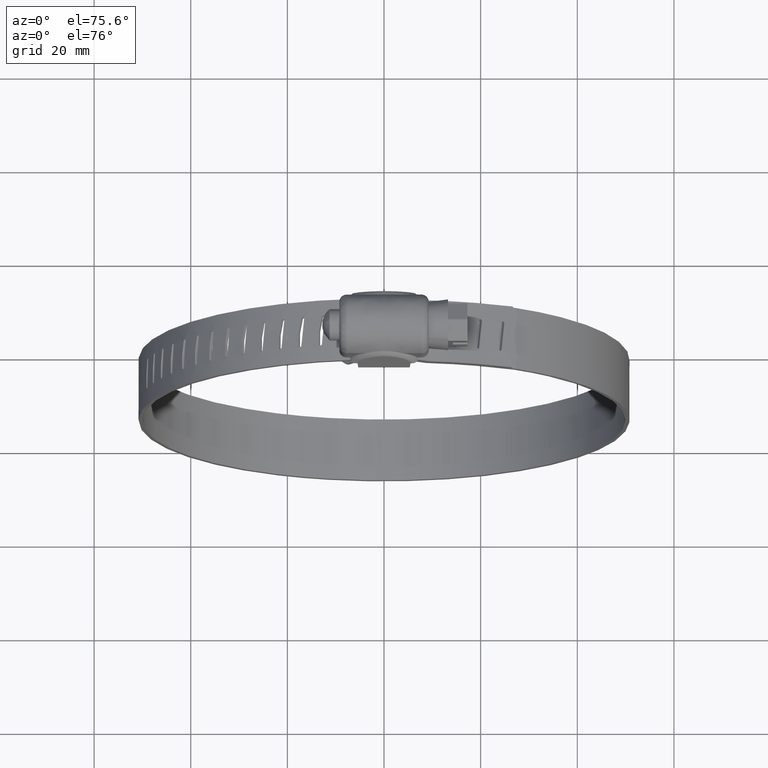
[diagram: clean part render]
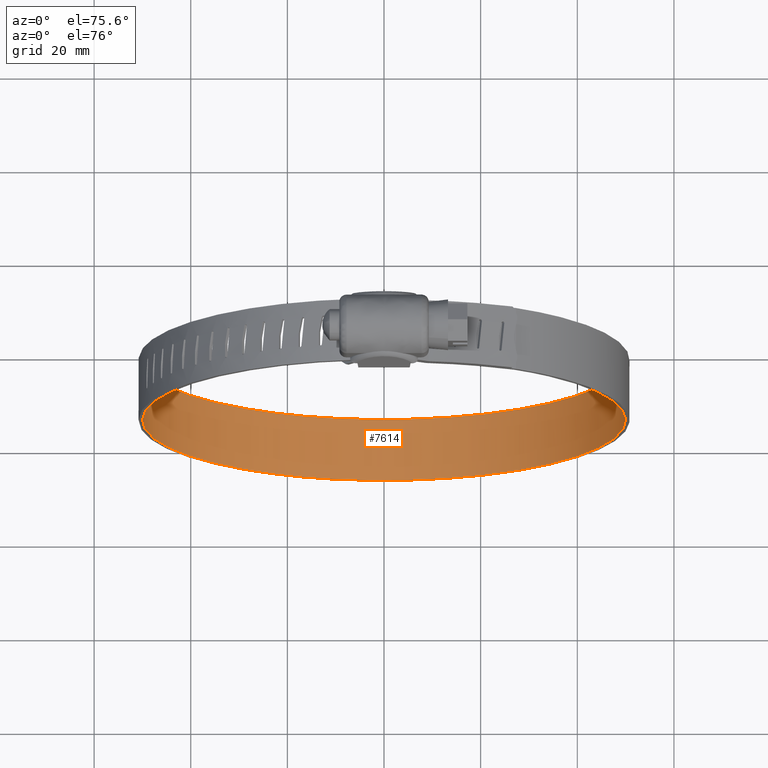
[diagram: same view with one face highlighted and labeled with its STEP entity id]
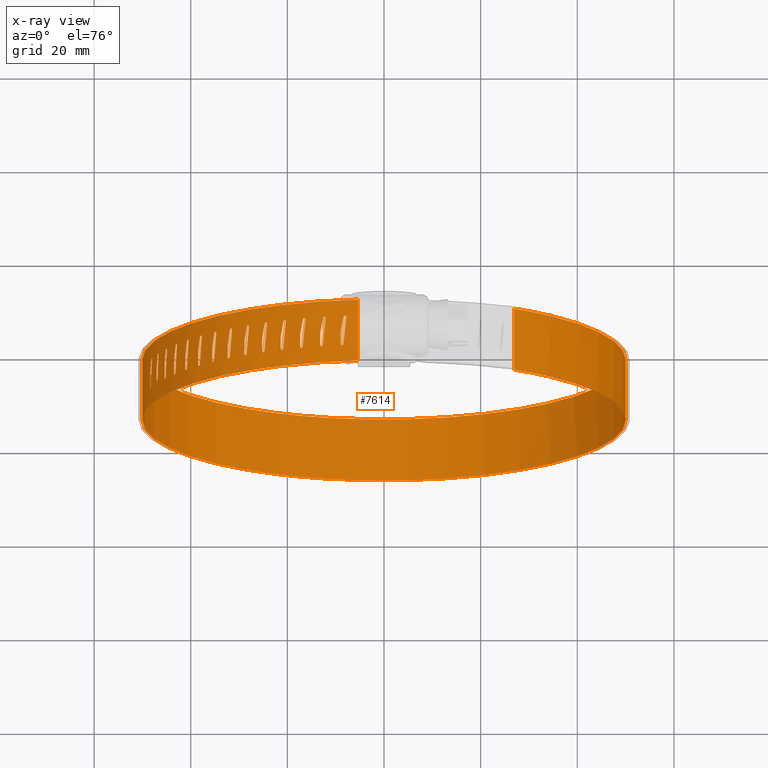
[diagram: x-ray of the same camera — body ghosted, the highlighted face saturated]
A machine part, auxiliary view. The second image highlights one B-rep face of the part: STEP entity #7614.
The next image is the same camera in x-ray: the body ghosted, the highlighted face saturated — about 0% of this face is hidden behind the body in this view.
In plain terms, the highlighted face is a freeform B-spline surface patch.
Its self-contained STEP definition (entity closure, byte-faithful):
#3653=CARTESIAN_POINT('',(-8.386810272676350,-2.794078000000000,10.935043768955961));
#3654=VERTEX_POINT('',#3653);
#3660=CARTESIAN_POINT('',(-8.682410134088128,-3.094077998482051,10.883835430058131));
#3661=VERTEX_POINT('',#3660);
#3662=CARTESIAN_POINT('',(-8.682410134088128,-3.094077998482051,10.883835430058131));
#3663=CARTESIAN_POINT('',(-8.629197632316513,-3.094213499986914,10.893218642586490));
#3664=CARTESIAN_POINT('',(-8.547181146278467,-3.070938268633463,10.907609458405609));
#3665=CARTESIAN_POINT('',(-8.460270727112336,-2.998481259584590,10.922713383892210));
#3666=CARTESIAN_POINT('',(-8.403199808274600,-2.911848296866251,10.932512616089650));
#3667=CARTESIAN_POINT('',(-8.386763596959527,-2.838272894317986,10.935186630350250));
#3668=CARTESIAN_POINT('',(-8.386810272676350,-2.794078000000000,10.935043768955961));
#3669=B_SPLINE_CURVE_WITH_KNOTS('',3,(#3662,#3663,#3664,#3665,#3666,#3667,#3668),.UNSPECIFIED.,.F.,.U.,(4,1,1,1,4),(0.000000531891636,0.162013753968013,0.250335856096129,0.338734268738850,0.471289081906856),.UNSPECIFIED.);
#3670=EDGE_CURVE('',#3661,#3654,#3669,.T.);
#3672=CARTESIAN_POINT('',(-8.977694924483579,-2.794078000000000,10.830854862355819));
#3673=VERTEX_POINT('',#3672);
#3674=CARTESIAN_POINT('',(-8.977694924483579,-2.794078000000000,10.830854862355819));
#3675=CARTESIAN_POINT('',(-8.977787780800664,-2.838271249745656,10.830973115477990));
#3676=CARTESIAN_POINT('',(-8.961429807430829,-2.911848696670379,10.834081607015509));
#3677=CARTESIAN_POINT('',(-8.899039678239388,-3.006761347617541,10.845371803202040));
#3678=CARTESIAN_POINT('',(-8.808036263474588,-3.075313434586740,10.861626991290150));
#3679=CARTESIAN_POINT('',(-8.725929768139489,-3.094139530581131,10.876161931810250));
#3680=CARTESIAN_POINT('',(-8.682410134088128,-3.094077998482051,10.883835430058131));
#3681=B_SPLINE_CURVE_WITH_KNOTS('',3,(#3674,#3675,#3676,#3677,#3678,#3679,#3680),.UNSPECIFIED.,.F.,.U.,(4,1,1,1,4),(0.000000543471417,0.132554942040885,0.220953097571582,0.338733230172094,0.471287650186668),.UNSPECIFIED.);
#3682=EDGE_CURVE('',#3673,#3661,#3681,.T.);
#3705=CARTESIAN_POINT('',(-8.977694924483638,-0.234601000000012,10.830854862356119));
#3706=VERTEX_POINT('',#3705);
#3707=CARTESIAN_POINT('',(-8.977694924483638,-0.234601000000012,10.830854862356119));
#3708=CARTESIAN_POINT('',(-8.977694924483579,-2.794078000000000,10.830854862355819));
#3709=QUASI_UNIFORM_CURVE('',1,(#3707,#3708),.UNSPECIFIED.,.F.,.U.);
#3710=EDGE_CURVE('',#3706,#3673,#3709,.T.);
#3733=CARTESIAN_POINT('',(-8.948880900802930,0.060368999999994,10.836105283616000));
#3734=VERTEX_POINT('',#3733);
#3735=CARTESIAN_POINT('',(-8.948880900802930,0.060368999999994,10.836105283616000));
#3736=CARTESIAN_POINT('',(-8.977694924483638,-0.234601000000012,10.830854862356119));
#3737=QUASI_UNIFORM_CURVE('',1,(#3735,#3736),.UNSPECIFIED.,.F.,.U.);
#3738=EDGE_CURVE('',#3734,#3706,#3737,.T.);
#3761=CARTESIAN_POINT('',(-8.386810272676289,2.905922000000000,10.935043768955699));
#3762=VERTEX_POINT('',#3761);
#3763=CARTESIAN_POINT('',(-8.386810272676289,2.905922000000000,10.935043768955699));
#3764=CARTESIAN_POINT('',(-8.948880900802930,0.060368999999994,10.836105283616000));
#3765=QUASI_UNIFORM_CURVE('',1,(#3763,#3764),.UNSPECIFIED.,.F.,.U.);
#3766=EDGE_CURVE('',#3762,#3734,#3765,.T.);
#3819=CARTESIAN_POINT('',(-8.090890713311424,3.205921998368609,10.984480492885650));
#3820=VERTEX_POINT('',#3819);
#3821=CARTESIAN_POINT('',(-8.090890713311424,3.205921998368609,10.984480492885650));
#3822=CARTESIAN_POINT('',(-8.144216657539289,3.206060742701182,10.975736584817691));
#3823=CARTESIAN_POINT('',(-8.226368470741706,3.182782829626762,10.962194643301780));
#3824=CARTESIAN_POINT('',(-8.320997462046263,3.104051506438658,10.946438100081330));
#3825=CARTESIAN_POINT('',(-8.374257513624773,3.013929426564421,10.937430556356810));
#3826=CARTESIAN_POINT('',(-8.386842198840842,2.940282260745060,10.935143007110350));
#3827=CARTESIAN_POINT('',(-8.386810272676289,2.905922000000000,10.935043768955699));
#3828=B_SPLINE_CURVE_WITH_KNOTS('',3,(#3821,#3822,#3823,#3824,#3825,#3826,#3827),.UNSPECIFIED.,.F.,.U.,(4,1,1,1,4),(0.000000594424207,0.162020456315543,0.250346128375914,0.368214690032009,0.471308464604286),.UNSPECIFIED.);
#3829=EDGE_CURVE('',#3820,#3762,#3828,.T.);
#3831=CARTESIAN_POINT('',(-7.794675241447370,2.905922000000000,11.032141421474440));
#3832=VERTEX_POINT('',#3831);
#3833=CARTESIAN_POINT('',(-7.794675241447370,2.905922000000000,11.032141421474440));
#3834=CARTESIAN_POINT('',(-7.794631635287654,2.950117044960132,11.032282948283930));
#3835=CARTESIAN_POINT('',(-7.811091374385861,3.023698968584405,11.029807626347029));
#3836=CARTESIAN_POINT('',(-7.873713127426342,3.118617389784800,11.019827582372770));
#3837=CARTESIAN_POINT('',(-7.964984614955499,3.187155859947108,11.005069377436900));
#3838=CARTESIAN_POINT('',(-8.047278552159195,3.205989563537569,10.991632172541969));
#3839=CARTESIAN_POINT('',(-8.090890713311424,3.205921998368609,10.984480492885650));
#3840=B_SPLINE_CURVE_WITH_KNOTS('',3,(#3833,#3834,#3835,#3836,#3837,#3838,#3839),.UNSPECIFIED.,.F.,.U.,(4,1,1,1,4),(0.000000585952543,0.132561575519509,0.220964144255755,0.338750037224443,0.471311090144476),.UNSPECIFIED.);
#3841=EDGE_CURVE('',#3832,#3820,#3840,.T.);
#3862=CARTESIAN_POINT('',(-8.386810272676350,-2.794078000000000,10.935043768955961));
#3863=CARTESIAN_POINT('',(-7.794675241447370,2.905922000000000,11.032141421474440));
#3864=QUASI_UNIFORM_CURVE('',1,(#3862,#3863),.UNSPECIFIED.,.F.,.U.);
#3865=EDGE_CURVE('',#3654,#3832,#3864,.T.);
#3915=CARTESIAN_POINT('',(-12.650941568002199,-2.794078000000000,10.016515686916600));
#3916=VERTEX_POINT('',#3915);
#3922=CARTESIAN_POINT('',(-12.940953481885860,-3.094077998482051,9.939738985731077));
#3923=VERTEX_POINT('',#3922);
#3924=CARTESIAN_POINT('',(-12.940953481885860,-3.094077998482051,9.939738985731077));
#3925=CARTESIAN_POINT('',(-12.898286703690870,-3.094116898891500,9.951171635291010));
#3926=CARTESIAN_POINT('',(-12.803400865402381,-3.072107544974593,9.976527861104692));
#3927=CARTESIAN_POINT('',(-12.684254399099821,-2.965701820025038,10.008122579614961));
#3928=CARTESIAN_POINT('',(-12.650780074230250,-2.853039037805592,10.016742083535970));
#3929=CARTESIAN_POINT('',(-12.650941568002199,-2.794078000000000,10.016515686916600));
#3930=B_SPLINE_CURVE_WITH_KNOTS('',3,(#3924,#3925,#3926,#3927,#3928,#3929),.UNSPECIFIED.,.F.,.U.,(4,1,1,4),(0.000000531891304,0.132555339556840,0.294532563200005,0.471289081906908),.UNSPECIFIED.);
#3931=EDGE_CURVE('',#3923,#3916,#3930,.T.);
#3933=CARTESIAN_POINT('',(-13.230497063775539,-2.794078000000000,9.861224259855099));
#3934=VERTEX_POINT('',#3933);
#3935=CARTESIAN_POINT('',(-13.230497063775539,-2.794078000000000,9.861224259855099));
#3936=CARTESIAN_POINT('',(-13.230935627648639,-2.862926803958906,9.861320581490878));
#3937=CARTESIAN_POINT('',(-13.191476282737311,-2.975256148055318,9.872242559880860));
#3938=CARTESIAN_POINT('',(-13.068909850413650,-3.074222569254388,9.905391511953084));
#3939=CARTESIAN_POINT('',(-12.983636157172651,-3.094134132526143,9.928302371681292));
#3940=CARTESIAN_POINT('',(-12.940953481885860,-3.094077998482051,9.939738985731077));
#3941=B_SPLINE_CURVE_WITH_KNOTS('',3,(#3935,#3936,#3937,#3938,#3939,#3940),.UNSPECIFIED.,.F.,.U.,(4,1,1,4),(0.000000543471499,0.206214475549396,0.338733230172038,0.471287650186613),.UNSPECIFIED.);
#3942=EDGE_CURVE('',#3934,#3923,#3941,.T.);
#3965=CARTESIAN_POINT('',(-13.230497063775699,-0.234601000000012,9.861224259855581));
#3966=VERTEX_POINT('',#3965);
#3967=CARTESIAN_POINT('',(-13.230497063775699,-0.234601000000012,9.861224259855581));
#3968=CARTESIAN_POINT('',(-13.230497063775539,-2.794078000000000,9.861224259855099));
#3969=QUASI_UNIFORM_CURVE('',1,(#3967,#3968),.UNSPECIFIED.,.F.,.U.);
#3970=EDGE_CURVE('',#3966,#3934,#3969,.T.);
#3993=CARTESIAN_POINT('',(-13.202250290518901,0.060368999999994,9.868966009312860));
#3994=VERTEX_POINT('',#3993);
#3995=CARTESIAN_POINT('',(-13.202250290518901,0.060368999999994,9.868966009312860));
#3996=CARTESIAN_POINT('',(-13.230497063775699,-0.234601000000012,9.861224259855581));
#3997=QUASI_UNIFORM_CURVE('',1,(#3995,#3996),.UNSPECIFIED.,.F.,.U.);
#3998=EDGE_CURVE('',#3994,#3966,#3997,.T.);
#4021=CARTESIAN_POINT('',(-12.650941568002279,2.905922000000000,10.016515686916859));
#4022=VERTEX_POINT('',#4021);
#4023=CARTESIAN_POINT('',(-12.650941568002279,2.905922000000000,10.016515686916859));
#4024=CARTESIAN_POINT('',(-13.202250290518901,0.060368999999994,9.868966009312860));
#4025=QUASI_UNIFORM_CURVE('',1,(#4023,#4024),.UNSPECIFIED.,.F.,.U.);
#4026=EDGE_CURVE('',#4022,#3994,#4025,.T.);
#4079=CARTESIAN_POINT('',(-12.360456766294369,3.205921998368609,10.091555378176430));
#4080=VERTEX_POINT('',#4079);
#4081=CARTESIAN_POINT('',(-12.360456766294369,3.205921998368609,10.091555378176430));
#4082=CARTESIAN_POINT('',(-12.403281930116060,3.205993449367300,10.080629713643200));
#4083=CARTESIAN_POINT('',(-12.484048642004510,3.187154117414556,10.059965550487000));
#4084=CARTESIAN_POINT('',(-12.581417530858550,3.112668651645838,10.034893399994550));
#4085=CARTESIAN_POINT('',(-12.638637094911230,3.013925560471030,10.019989339239681));
#4086=CARTESIAN_POINT('',(-12.650983274508951,2.940282177298170,10.016611445046079));
#4087=CARTESIAN_POINT('',(-12.650941568002279,2.905922000000000,10.016515686916859));
#4088=B_SPLINE_CURVE_WITH_KNOTS('',3,(#4081,#4082,#4083,#4084,#4085,#4086,#4087),.UNSPECIFIED.,.F.,.U.,(4,1,1,1,4),(0.000000594424088,0.132560849399408,0.250346128375859,0.368214690031979,0.471308464604283),.UNSPECIFIED.);
#4089=EDGE_CURVE('',#4080,#4022,#4088,.T.);
#4091=CARTESIAN_POINT('',(-12.069522407361820,2.905922000000000,10.164851822006320));
#4092=VERTEX_POINT('',#4091);
#4093=CARTESIAN_POINT('',(-12.069522407361820,2.905922000000000,10.164851822006320));
#4094=CARTESIAN_POINT('',(-12.069191615729480,2.974771191179135,10.165149412295110));
#4095=CARTESIAN_POINT('',(-12.108942468751740,3.087115988578871,10.155355751820370));
#4096=CARTESIAN_POINT('',(-12.232062158821620,3.186065986490311,10.124250913713650));
#4097=CARTESIAN_POINT('',(-12.317637447085700,3.205984305280423,10.102479965580940));
#4098=CARTESIAN_POINT('',(-12.360456766294369,3.205921998368609,10.091555378176430));
#4099=B_SPLINE_CURVE_WITH_KNOTS('',3,(#4093,#4094,#4095,#4096,#4097,#4098),.UNSPECIFIED.,.F.,.U.,(4,1,1,4),(0.000000585952961,0.206224757768616,0.338750037224531,0.471311090144484),.UNSPECIFIED.);
#4100=EDGE_CURVE('',#4092,#4080,#4099,.T.);
#4121=CARTESIAN_POINT('',(-12.650941568002199,-2.794078000000000,10.016515686916600));
#4122=CARTESIAN_POINT('',(-12.069522407361820,2.905922000000000,10.164851822006320));
#4123=QUASI_UNIFORM_CURVE('',1,(#4121,#4122),.UNSPECIFIED.,.F.,.U.);
#4124=EDGE_CURVE('',#3916,#4092,#4123,.T.);
#4172=CARTESIAN_POINT('',(-16.818791559148199,-2.794078000000000,8.729839351323140));
#4173=VERTEX_POINT('',#4172);
#4179=CARTESIAN_POINT('',(-17.101008359724869,-3.094077998482050,8.628078604904856));
#4180=VERTEX_POINT('',#4179);
#4181=CARTESIAN_POINT('',(-17.101008359724869,-3.094077998482050,8.628078604904856));
#4182=CARTESIAN_POINT('',(-17.036315611326799,-3.094468358511445,8.651626085910856));
#4183=CARTESIAN_POINT('',(-16.930705041094189,-3.053543444307102,8.689934534539122));
#4184=CARTESIAN_POINT('',(-16.837593132213140,-2.926557442058542,8.723419087152749));
#4185=CARTESIAN_POINT('',(-16.818781116207841,-2.838268078408121,8.729984231787867));
#4186=CARTESIAN_POINT('',(-16.818791559148199,-2.794078000000000,8.729839351323140));
#4187=B_SPLINE_CURVE_WITH_KNOTS('',3,(#4181,#4182,#4183,#4184,#4185,#4186),.UNSPECIFIED.,.F.,.U.,(4,1,1,4),(0.000000531891726,0.206215102717593,0.338734268738868,0.471289081906885),.UNSPECIFIED.);
#4188=EDGE_CURVE('',#4180,#4173,#4187,.T.);
#4190=CARTESIAN_POINT('',(-17.382607131619700,-2.794078000000000,8.524627265327592));
#4191=VERTEX_POINT('',#4190);
#4192=CARTESIAN_POINT('',(-17.382607131619700,-2.794078000000000,8.524627265327592));
#4193=CARTESIAN_POINT('',(-17.382857499392170,-2.853043718397388,8.524724390596202));
#4194=CARTESIAN_POINT('',(-17.356100877164248,-2.946029457531360,8.534759867365837));
#4195=CARTESIAN_POINT('',(-17.252878600338420,-3.061569653601757,8.572698572882899));
#4196=CARTESIAN_POINT('',(-17.161055460028631,-3.094327580725561,8.606224044517074));
#4197=CARTESIAN_POINT('',(-17.101008359724869,-3.094077998482050,8.628078604904856));
#4198=B_SPLINE_CURVE_WITH_KNOTS('',3,(#4192,#4193,#4194,#4195,#4196,#4197),.UNSPECIFIED.,.F.,.U.,(4,1,1,4),(0.000000543471706,0.176756515102888,0.279815862544502,0.471287650186748),.UNSPECIFIED.);
#4199=EDGE_CURVE('',#4191,#4180,#4198,.T.);
#4222=CARTESIAN_POINT('',(-17.382607131619800,-0.234601000000012,8.524627265327990));
#4223=VERTEX_POINT('',#4222);
#4224=CARTESIAN_POINT('',(-17.382607131619800,-0.234601000000012,8.524627265327990));
#4225=CARTESIAN_POINT('',(-17.382607131619700,-2.794078000000000,8.524627265327592));
#4226=QUASI_UNIFORM_CURVE('',1,(#4224,#4225),.UNSPECIFIED.,.F.,.U.);
#4227=EDGE_CURVE('',#4223,#4191,#4226,.T.);
#4250=CARTESIAN_POINT('',(-17.355142583787298,0.060368999999994,8.534801423594640));
#4251=VERTEX_POINT('',#4250);
#4252=CARTESIAN_POINT('',(-17.355142583787298,0.060368999999994,8.534801423594640));
#4253=CARTESIAN_POINT('',(-17.382607131619800,-0.234601000000012,8.524627265327990));
#4254=QUASI_UNIFORM_CURVE('',1,(#4252,#4253),.UNSPECIFIED.,.F.,.U.);
#4255=EDGE_CURVE('',#4251,#4223,#4254,.T.);
#4278=CARTESIAN_POINT('',(-16.818791559148249,2.905922000000000,8.729839351322990));
#4279=VERTEX_POINT('',#4278);
#4280=CARTESIAN_POINT('',(-16.818791559148249,2.905922000000000,8.729839351322990));
#4281=CARTESIAN_POINT('',(-17.355142583787298,0.060368999999994,8.534801423594640));
#4282=QUASI_UNIFORM_CURVE('',1,(#4280,#4281),.UNSPECIFIED.,.F.,.U.);
#4283=EDGE_CURVE('',#4279,#4251,#4282,.T.);
#4335=CARTESIAN_POINT('',(-16.535952279838160,3.205921998368609,8.829910912552153));
#4336=VERTEX_POINT('',#4335);
#4337=CARTESIAN_POINT('',(-16.535952279838160,3.205921998368609,8.829910912552153));
#4338=CARTESIAN_POINT('',(-16.586951581577999,3.206062545315425,8.812039244227211));
#4339=CARTESIAN_POINT('',(-16.665498878480289,3.182779877468060,8.784439228882397));
#4340=CARTESIAN_POINT('',(-16.755958524792280,3.104054783977665,8.752488396990010));
#4341=CARTESIAN_POINT('',(-16.806846446561881,3.013926765634712,8.734368764048494));
#4342=CARTESIAN_POINT('',(-16.818837655462492,2.940283621512382,8.729932445433732));
#4343=CARTESIAN_POINT('',(-16.818791559148249,2.905922000000000,8.729839351322990));
#4344=B_SPLINE_CURVE_WITH_KNOTS('',3,(#4337,#4338,#4339,#4340,#4341,#4342,#4343),.UNSPECIFIED.,.F.,.U.,(4,1,1,1,4),(0.000000594424113,0.162020456315410,0.250346128375804,0.368214690031902,0.471308464604178),.UNSPECIFIED.);
#4345=EDGE_CURVE('',#4336,#4279,#4344,.T.);
#4347=CARTESIAN_POINT('',(-16.252513219979349,2.905922000000000,8.928285041428230));
#4348=VERTEX_POINT('',#4347);
#4349=CARTESIAN_POINT('',(-16.252513219979349,2.905922000000000,8.928285041428230));
#4350=CARTESIAN_POINT('',(-16.252257652634832,2.974775389594289,8.928593511889776));
#4351=CARTESIAN_POINT('',(-16.287561965711081,3.077292030232952,8.916547461556226));
#4352=CARTESIAN_POINT('',(-16.401729515695038,3.181411510330459,8.876869798774374));
#4353=CARTESIAN_POINT('',(-16.484961363805681,3.206056993630826,8.847780518004706));
#4354=CARTESIAN_POINT('',(-16.535952279838160,3.205921998368609,8.829910912552153));
#4355=B_SPLINE_CURVE_WITH_KNOTS('',3,(#4349,#4350,#4351,#4352,#4353,#4354),.UNSPECIFIED.,.F.,.U.,(4,1,1,4),(0.000000585953132,0.206224757768787,0.309290257206250,0.471311090144658),.UNSPECIFIED.);
#4356=EDGE_CURVE('',#4348,#4336,#4355,.T.);
#4377=CARTESIAN_POINT('',(-16.818791559148199,-2.794078000000000,8.729839351323140));
#4378=CARTESIAN_POINT('',(-16.252513219979349,2.905922000000000,8.928285041428230));
#4379=QUASI_UNIFORM_CURVE('',1,(#4377,#4378),.UNSPECIFIED.,.F.,.U.);
#4380=EDGE_CURVE('',#4173,#4348,#4379,.T.);
#4429=CARTESIAN_POINT('',(-20.858640391065201,-2.794078000000000,7.084807146005471));
#4430=VERTEX_POINT('',#4429);
#4436=CARTESIAN_POINT('',(-21.130914238075110,-3.094077998482050,6.958836815079759));
#4437=VERTEX_POINT('',#4436);
#4438=CARTESIAN_POINT('',(-21.130914238075110,-3.094077998482050,6.958836815079759));
#4439=CARTESIAN_POINT('',(-21.099774305968509,-3.094097071872489,6.973357667014855));
#4440=CARTESIAN_POINT('',(-21.033012963566030,-3.081305096863799,7.004446648687282));
#4441=CARTESIAN_POINT('',(-20.955174590241640,-3.029866905343947,7.040573009425104));
#4442=CARTESIAN_POINT('',(-20.881803978640281,-2.936221656339501,7.074476306417701));
#4443=CARTESIAN_POINT('',(-20.858537088779531,-2.853053832713301,7.085050536273512));
#4444=CARTESIAN_POINT('',(-20.858640391065201,-2.794078000000000,7.084807146005471));
#4445=B_SPLINE_CURVE_WITH_KNOTS('',3,(#4438,#4439,#4440,#4441,#4442,#4443,#4444),.UNSPECIFIED.,.F.,.U.,(4,1,1,1,4),(0.000000531891470,0.103090007259243,0.220953757469502,0.294532563199869,0.471289081906621),.UNSPECIFIED.);
#4446=EDGE_CURVE('',#4437,#4430,#4445,.T.);
#4448=CARTESIAN_POINT('',(-21.402425063287051,-2.794078000000000,6.831236188961101));
#4449=VERTEX_POINT('',#4448);
#4450=CARTESIAN_POINT('',(-21.402425063287051,-2.794078000000000,6.831236188961101));
#4451=CARTESIAN_POINT('',(-21.402870816364519,-2.862924314323423,6.831256223411836));
#4452=CARTESIAN_POINT('',(-21.365912931269389,-2.975262000106891,6.848861824335406));
#4453=CARTESIAN_POINT('',(-21.250960586660881,-3.074215295978400,6.902792534552792));
#4454=CARTESIAN_POINT('',(-21.170963089235510,-3.094139780613061,6.940161933570854));
#4455=CARTESIAN_POINT('',(-21.130914238075110,-3.094077998482050,6.958836815079759));
#4456=B_SPLINE_CURVE_WITH_KNOTS('',3,(#4450,#4451,#4452,#4453,#4454,#4455),.UNSPECIFIED.,.F.,.U.,(4,1,1,4),(0.000000543471696,0.206214475549479,0.338733230172150,0.471287650186834),.UNSPECIFIED.);
#4457=EDGE_CURVE('',#4449,#4437,#4456,.T.);
#4480=CARTESIAN_POINT('',(-21.402425063287101,-0.234601000000012,6.831236188961310));
#4481=VERTEX_POINT('',#4480);
#4482=CARTESIAN_POINT('',(-21.402425063287101,-0.234601000000012,6.831236188961310));
#4483=CARTESIAN_POINT('',(-21.402425063287051,-2.794078000000000,6.831236188961101));
#4484=QUASI_UNIFORM_CURVE('',1,(#4482,#4483),.UNSPECIFIED.,.F.,.U.);
#4485=EDGE_CURVE('',#4481,#4449,#4484,.T.);
#4508=CARTESIAN_POINT('',(-21.375951762671448,0.060368999999994,6.843765324549561));
#4509=VERTEX_POINT('',#4508);
#4510=CARTESIAN_POINT('',(-21.375951762671448,0.060368999999994,6.843765324549561));
#4511=CARTESIAN_POINT('',(-21.402425063287101,-0.234601000000012,6.831236188961310));
#4512=QUASI_UNIFORM_CURVE('',1,(#4510,#4511),.UNSPECIFIED.,.F.,.U.);
#4513=EDGE_CURVE('',#4509,#4481,#4512,.T.);
#4536=CARTESIAN_POINT('',(-20.858640391065101,2.905922000000000,7.084807146005570));
#4537=VERTEX_POINT('',#4536);
#4538=CARTESIAN_POINT('',(-20.858640391065101,2.905922000000000,7.084807146005570));
#4539=CARTESIAN_POINT('',(-21.375951762671448,0.060368999999994,6.843765324549561));
#4540=QUASI_UNIFORM_CURVE('',1,(#4538,#4539),.UNSPECIFIED.,.F.,.U.);
#4541=EDGE_CURVE('',#4537,#4509,#4540,.T.);
#4594=CARTESIAN_POINT('',(-20.585599211850919,3.205921998368610,7.209148972198230));
#4595=VERTEX_POINT('',#4594);
#4596=CARTESIAN_POINT('',(-20.585599211850919,3.205921998368610,7.209148972198230));
#4597=CARTESIAN_POINT('',(-20.634845129023279,3.206060917998263,7.186901190841529));
#4598=CARTESIAN_POINT('',(-20.710692180905198,3.182782622640252,7.152558492951751));
#4599=CARTESIAN_POINT('',(-20.798019364158758,3.104051787317713,7.112846745584473));
#4600=CARTESIAN_POINT('',(-20.847132782020999,3.013928893140073,7.090361641938188));
#4601=CARTESIAN_POINT('',(-20.858697211694992,2.940282701005189,7.084894606603458));
#4602=CARTESIAN_POINT('',(-20.858640391065101,2.905922000000000,7.084807146005570));
#4603=B_SPLINE_CURVE_WITH_KNOTS('',3,(#4596,#4597,#4598,#4599,#4600,#4601,#4602),.UNSPECIFIED.,.F.,.U.,(4,1,1,1,4),(0.000000594424195,0.162020456315463,0.250346128375857,0.368214690031960,0.471308464604245),.UNSPECIFIED.);
#4604=EDGE_CURVE('',#4595,#4537,#4603,.T.);
#4606=CARTESIAN_POINT('',(-20.311812593457152,2.905922000000000,7.331852099599630));
#4607=VERTEX_POINT('',#4606);
#4608=CARTESIAN_POINT('',(-20.311812593457152,2.905922000000000,7.331852099599630));
#4609=CARTESIAN_POINT('',(-20.311583720305379,2.974751974941246,7.332182118857377));
#4610=CARTESIAN_POINT('',(-20.348941430221661,3.087136809767155,7.315674736427870));
#4611=CARTESIAN_POINT('',(-20.464841817285119,3.186064727425868,7.263639167813817));
#4612=CARTESIAN_POINT('',(-20.545328513289920,3.205979558747912,7.227342590875955));
#4613=CARTESIAN_POINT('',(-20.585599211850919,3.205921998368610,7.209148972198230));
#4614=B_SPLINE_CURVE_WITH_KNOTS('',3,(#4608,#4609,#4610,#4611,#4612,#4613),.UNSPECIFIED.,.F.,.U.,(4,1,1,4),(0.000000585952162,0.206224757768257,0.338750037224416,0.471311090144449),.UNSPECIFIED.);
#4615=EDGE_CURVE('',#4607,#4595,#4614,.T.);
#4636=CARTESIAN_POINT('',(-20.858640391065201,-2.794078000000000,7.084807146005471));
#4637=CARTESIAN_POINT('',(-20.311812593457152,2.905922000000000,7.331852099599630));
#4638=QUASI_UNIFORM_CURVE('',1,(#4636,#4637),.UNSPECIFIED.,.F.,.U.);
#4639=EDGE_CURVE('',#4430,#4607,#4638,.T.);
#4688=CARTESIAN_POINT('',(-24.739742374814551,-2.794078000000000,5.093938759343930));
#4689=VERTEX_POINT('',#4688);
#4695=CARTESIAN_POINT('',(-25.000001099878361,-3.094077998482050,4.944717554192287));
#4696=VERTEX_POINT('',#4695);
#4697=CARTESIAN_POINT('',(-25.000001099878361,-3.094077998482050,4.944717554192287));
#4698=CARTESIAN_POINT('',(-24.948939514193839,-3.094293943589157,4.974198722464971));
#4699=CARTESIAN_POINT('',(-24.851318416457431,-3.059727999229064,5.030440548461703));
#4700=CARTESIAN_POINT('',(-24.758982488277720,-2.936465516368009,5.083323723855698));
#4701=CARTESIAN_POINT('',(-24.739775636806169,-2.838249279039811,5.094072570676437));
#4702=CARTESIAN_POINT('',(-24.739742374814551,-2.794078000000000,5.093938759343930));
#4703=B_SPLINE_CURVE_WITH_KNOTS('',3,(#4697,#4698,#4699,#4700,#4701,#4702),.UNSPECIFIED.,.F.,.U.,(4,1,1,4),(0.000000531891568,0.176757045816763,0.338734268738381,0.471289081906277),.UNSPECIFIED.);
#4704=EDGE_CURVE('',#4696,#4689,#4703,.T.);
#4706=CARTESIAN_POINT('',(-25.259357617085151,-2.794078000000000,4.793938759343959));
#4707=VERTEX_POINT('',#4706);
#4708=CARTESIAN_POINT('',(-25.259357617085151,-2.794078000000000,4.793938759343959));
#4709=CARTESIAN_POINT('',(-25.259803602004339,-2.862924145586405,4.793919761983984));
#4710=CARTESIAN_POINT('',(-25.224520486273939,-2.975261993627903,4.814679631532164));
#4711=CARTESIAN_POINT('',(-25.114706080723838,-3.074215375629123,4.878423795804000));
#4712=CARTESIAN_POINT('',(-25.038269896340541,-3.094139678333415,4.922623267898030));
#4713=CARTESIAN_POINT('',(-25.000001099878361,-3.094077998482050,4.944717554192287));
#4714=B_SPLINE_CURVE_WITH_KNOTS('',3,(#4708,#4709,#4710,#4711,#4712,#4713),.UNSPECIFIED.,.F.,.U.,(4,1,1,4),(0.000000543471701,0.206214475549722,0.338733230172492,0.471287650187208),.UNSPECIFIED.);
#4715=EDGE_CURVE('',#4707,#4696,#4714,.T.);
#4738=CARTESIAN_POINT('',(-25.259357617085200,-0.234601000000012,4.793938759344090));
#4739=VERTEX_POINT('',#4738);
#4740=CARTESIAN_POINT('',(-25.259357617085200,-0.234601000000012,4.793938759344090));
#4741=CARTESIAN_POINT('',(-25.259357617085151,-2.794078000000000,4.793938759343959));
#4742=QUASI_UNIFORM_CURVE('',1,(#4740,#4741),.UNSPECIFIED.,.F.,.U.);
#4743=EDGE_CURVE('',#4739,#4707,#4742,.T.);
#4766=CARTESIAN_POINT('',(-25.234077041489051,0.060368999999994,4.808727517967021));
#4767=VERTEX_POINT('',#4766);
#4768=CARTESIAN_POINT('',(-25.234077041489051,0.060368999999994,4.808727517967021));
#4769=CARTESIAN_POINT('',(-25.259357617085200,-0.234601000000012,4.793938759344090));
#4770=QUASI_UNIFORM_CURVE('',1,(#4768,#4769),.UNSPECIFIED.,.F.,.U.);
#4771=EDGE_CURVE('',#4767,#4739,#4770,.T.);
#4794=CARTESIAN_POINT('',(-24.739742374814352,2.905922000000000,5.093938759343500));
#4795=VERTEX_POINT('',#4794);
#4796=CARTESIAN_POINT('',(-24.739742374814352,2.905922000000000,5.093938759343500));
#4797=CARTESIAN_POINT('',(-25.234077041489051,0.060368999999994,4.808727517967021));
#4798=QUASI_UNIFORM_CURVE('',1,(#4796,#4797),.UNSPECIFIED.,.F.,.U.);
#4799=EDGE_CURVE('',#4795,#4767,#4798,.T.);
#4852=CARTESIAN_POINT('',(-24.478577303936831,3.205921998368610,5.241604534123439));
#4853=VERTEX_POINT('',#4852);
#4854=CARTESIAN_POINT('',(-24.478577303936831,3.205921998368610,5.241604534123439));
#4855=CARTESIAN_POINT('',(-24.525696588138711,3.206060952826108,5.215149468905722));
#4856=CARTESIAN_POINT('',(-24.598262485038600,3.182782505838946,5.174326595364336));
#4857=CARTESIAN_POINT('',(-24.681795923241509,3.104051879603861,5.127155084743144));
#4858=CARTESIAN_POINT('',(-24.728762526001240,3.013928838742285,5.100475149078814));
#4859=CARTESIAN_POINT('',(-24.739806627365269,2.940282711307325,5.094020920631120));
#4860=CARTESIAN_POINT('',(-24.739742374814352,2.905922000000000,5.093938759343500));
#4861=B_SPLINE_CURVE_WITH_KNOTS('',3,(#4854,#4855,#4856,#4857,#4858,#4859,#4860),.UNSPECIFIED.,.F.,.U.,(4,1,1,1,4),(0.000000594423647,0.162020456315450,0.250346128375972,0.368214690032162,0.471308464604501),.UNSPECIFIED.);
#4862=EDGE_CURVE('',#4853,#4795,#4861,.T.);
#4864=CARTESIAN_POINT('',(-24.216526808490801,2.905922000000000,5.387702815160349));
#4865=VERTEX_POINT('',#4864);
#4866=CARTESIAN_POINT('',(-24.216526808490801,2.905922000000000,5.387702815160349));
#4867=CARTESIAN_POINT('',(-24.216330267185761,2.974775313140103,5.388050091785051));
#4868=CARTESIAN_POINT('',(-24.249003136945301,3.077290965852647,5.370058377232660));
#4869=CARTESIAN_POINT('',(-24.354547670525090,3.181412652430644,5.311157742383910));
#4870=CARTESIAN_POINT('',(-24.431464677958171,3.206056219759244,5.268056800763409));
#4871=CARTESIAN_POINT('',(-24.478577303936831,3.205921998368610,5.241604534123439));
#4872=B_SPLINE_CURVE_WITH_KNOTS('',3,(#4866,#4867,#4868,#4869,#4870,#4871),.UNSPECIFIED.,.F.,.U.,(4,1,1,4),(0.000000585953214,0.206224757768685,0.309290257206112,0.471311090144374),.UNSPECIFIED.);
#4873=EDGE_CURVE('',#4865,#4853,#4872,.T.);
#4894=CARTESIAN_POINT('',(-24.739742374814551,-2.794078000000000,5.093938759343930));
#4895=CARTESIAN_POINT('',(-24.216526808490801,2.905922000000000,5.387702815160349));
#4896=QUASI_UNIFORM_CURVE('',1,(#4894,#4895),.UNSPECIFIED.,.F.,.U.);
#4897=EDGE_CURVE('',#4689,#4865,#4896,.T.);
#4945=CARTESIAN_POINT('',(-28.432559980826799,-2.794078000000000,2.772385901880085));
#4946=VERTEX_POINT('',#4945);
#4952=CARTESIAN_POINT('',(-28.678822857899011,-3.094077998482051,2.601049485975564));
#4953=VERTEX_POINT('',#4952);
#4954=CARTESIAN_POINT('',(-28.678822857899011,-3.094077998482051,2.601049485975564));
#4955=CARTESIAN_POINT('',(-28.642638816058820,-3.094116211018032,2.626385964759150));
#4956=CARTESIAN_POINT('',(-28.562148627970871,-3.072108201031817,2.682665199986611));
#4957=CARTESIAN_POINT('',(-28.460992356061130,-2.965702789459868,2.753105889534606));
#4958=CARTESIAN_POINT('',(-28.432486535834698,-2.853038005695069,2.772653261156930));
#4959=CARTESIAN_POINT('',(-28.432559980826799,-2.794078000000000,2.772385901880085));
#4960=B_SPLINE_CURVE_WITH_KNOTS('',3,(#4954,#4955,#4956,#4957,#4958,#4959),.UNSPECIFIED.,.F.,.U.,(4,1,1,4),(0.000000531891517,0.132555339556757,0.294532563199684,0.471289081906413),.UNSPECIFIED.);
#4961=EDGE_CURVE('',#4953,#4946,#4960,.T.);
#4963=CARTESIAN_POINT('',(-28.924051207400151,-2.794078000000000,2.428240040069555));
#4964=VERTEX_POINT('',#4963);
#4965=CARTESIAN_POINT('',(-28.924051207400151,-2.794078000000000,2.428240040069555));
#4966=CARTESIAN_POINT('',(-28.924453549422370,-2.862903556722699,2.428210380853924));
#4967=CARTESIAN_POINT('',(-28.891193477302139,-2.975288961427843,2.451910929474582));
#4968=CARTESIAN_POINT('',(-28.787303772936362,-3.074205774085688,2.525017552280089));
#4969=CARTESIAN_POINT('',(-28.715020466320411,-3.094141398631690,2.575703879863896));
#4970=CARTESIAN_POINT('',(-28.678822857899011,-3.094077998482051,2.601049485975564));
#4971=B_SPLINE_CURVE_WITH_KNOTS('',3,(#4965,#4966,#4967,#4968,#4969,#4970),.UNSPECIFIED.,.F.,.U.,(4,1,1,4),(0.000000543471349,0.206214475549493,0.338733230172335,0.471287650187066),.UNSPECIFIED.);
#4972=EDGE_CURVE('',#4964,#4953,#4971,.T.);
#4995=CARTESIAN_POINT('',(-28.924051207400051,-0.234601000000012,2.428240040069585));
#4996=VERTEX_POINT('',#4995);
#4997=CARTESIAN_POINT('',(-28.924051207400051,-0.234601000000012,2.428240040069585));
#4998=CARTESIAN_POINT('',(-28.924051207400151,-2.794078000000000,2.428240040069555));
#4999=QUASI_UNIFORM_CURVE('',1,(#4997,#4998),.UNSPECIFIED.,.F.,.U.);
#5000=EDGE_CURVE('',#4996,#4964,#4999,.T.);
#5023=CARTESIAN_POINT('',(-28.900155757268550,0.060368999999994,2.445175870344205));
#5024=VERTEX_POINT('',#5023);
#5025=CARTESIAN_POINT('',(-28.900155757268550,0.060368999999994,2.445175870344205));
#5026=CARTESIAN_POINT('',(-28.924051207400051,-0.234601000000012,2.428240040069585));
#5027=QUASI_UNIFORM_CURVE('',1,(#5025,#5026),.UNSPECIFIED.,.F.,.U.);
#5028=EDGE_CURVE('',#5024,#4996,#5027,.T.);
#5051=CARTESIAN_POINT('',(-28.432559980826849,2.905922000000000,2.772385901880115));
#5052=VERTEX_POINT('',#5051);
#5053=CARTESIAN_POINT('',(-28.432559980826849,2.905922000000000,2.772385901880115));
#5054=CARTESIAN_POINT('',(-28.900155757268550,0.060368999999994,2.445175870344205));
#5055=QUASI_UNIFORM_CURVE('',1,(#5053,#5054),.UNSPECIFIED.,.F.,.U.);
#5056=EDGE_CURVE('',#5052,#5024,#5055,.T.);
#5108=CARTESIAN_POINT('',(-28.185258642171188,3.205921998368610,2.942251799537039));
#5109=VERTEX_POINT('',#5108);
#5110=CARTESIAN_POINT('',(-28.185258642171188,3.205921998368610,2.942251799537039));
#5111=CARTESIAN_POINT('',(-28.229892825706919,3.206061008127178,2.911790746992132));
#5112=CARTESIAN_POINT('',(-28.298625164783079,3.182782532633219,2.864798323638488));
#5113=CARTESIAN_POINT('',(-28.377727513809180,3.104051834133328,2.810527227368280));
#5114=CARTESIAN_POINT('',(-28.422195347209239,3.013928510515360,2.779851815333665));
#5115=CARTESIAN_POINT('',(-28.432628426422909,2.940283278344201,2.772464011162896));
#5116=CARTESIAN_POINT('',(-28.432559980826849,2.905922000000000,2.772385901880115));
#5117=B_SPLINE_CURVE_WITH_KNOTS('',3,(#5110,#5111,#5112,#5113,#5114,#5115,#5116),.UNSPECIFIED.,.F.,.U.,(4,1,1,1,4),(0.000000594424010,0.162020456315592,0.250346128376015,0.368214690032104,0.471308464604348),.UNSPECIFIED.);
#5118=EDGE_CURVE('',#5109,#5052,#5117,.T.);
#5120=CARTESIAN_POINT('',(-27.936938632173248,2.905922000000000,3.110633338074355));
#5121=VERTEX_POINT('',#5120);
#5122=CARTESIAN_POINT('',(-27.936938632173248,2.905922000000000,3.110633338074355));
#5123=CARTESIAN_POINT('',(-27.936771302749580,2.974775730430983,3.110997655037853));
#5124=CARTESIAN_POINT('',(-27.967755923321501,3.077291199014400,3.090223934913881));
#5125=CARTESIAN_POINT('',(-28.067762443924401,3.181411983594838,3.022350568123902));
#5126=CARTESIAN_POINT('',(-28.140630492111711,3.206056181146406,2.972709726529249));
#5127=CARTESIAN_POINT('',(-28.185258642171188,3.205921998368610,2.942251799537039));
#5128=B_SPLINE_CURVE_WITH_KNOTS('',3,(#5122,#5123,#5124,#5125,#5126,#5127),.UNSPECIFIED.,.F.,.U.,(4,1,1,4),(0.000000585952183,0.206224757768187,0.309290257205907,0.471311090144473),.UNSPECIFIED.);
#5129=EDGE_CURVE('',#5121,#5109,#5128,.T.);
#5150=CARTESIAN_POINT('',(-28.432559980826799,-2.794078000000000,2.772385901880085));
#5151=CARTESIAN_POINT('',(-27.936938632173248,2.905922000000000,3.110633338074355));
#5152=QUASI_UNIFORM_CURVE('',1,(#5150,#5151),.UNSPECIFIED.,.F.,.U.);
#5153=EDGE_CURVE('',#4946,#5121,#5152,.T.);
#5202=CARTESIAN_POINT('',(-31.908988637335899,-2.794078000000000,0.137816992651384));
#5203=VERTEX_POINT('',#5202);
#5209=CARTESIAN_POINT('',(-32.139381457224857,-3.094077998482051,-0.054330660425896));
#5210=VERTEX_POINT('',#5209);
#5211=CARTESIAN_POINT('',(-32.139381457224857,-3.094077998482051,-0.054330660425896));
#5212=CARTESIAN_POINT('',(-32.086639355567037,-3.094422498770907,-0.010073433265391));
#5213=CARTESIAN_POINT('',(-32.008039374158457,-3.057120212703586,0.055733696765896));
#5214=CARTESIAN_POINT('',(-31.928044947101998,-2.936270771351896,0.122383713534580));
#5215=CARTESIAN_POINT('',(-31.908989418894880,-2.848105859911466,0.138027923803312));
#5216=CARTESIAN_POINT('',(-31.908988637335899,-2.794078000000000,0.137816992651384));
#5217=B_SPLINE_CURVE_WITH_KNOTS('',3,(#5211,#5212,#5213,#5214,#5215,#5216),.UNSPECIFIED.,.F.,.U.,(4,1,1,4),(0.000000531890957,0.206215102717315,0.309275853830665,0.471289081907001),.UNSPECIFIED.);
#5218=EDGE_CURVE('',#5210,#5203,#5217,.T.);
#5220=CARTESIAN_POINT('',(-32.368615303207200,-2.794078000000000,-0.247855573160406));
#5221=VERTEX_POINT('',#5220);
#5222=CARTESIAN_POINT('',(-32.368615303207200,-2.794078000000000,-0.247855573160406));
#5223=CARTESIAN_POINT('',(-32.369051160105357,-2.862924149029893,-0.247951681344270));
#5224=CARTESIAN_POINT('',(-32.337909163775947,-2.975261998576224,-0.221380499852709));
#5225=CARTESIAN_POINT('',(-32.240831897820968,-3.074215330433325,-0.139535475091827));
#5226=CARTESIAN_POINT('',(-32.173232443000643,-3.094139690522860,-0.082734768528806));
#5227=CARTESIAN_POINT('',(-32.139381457224857,-3.094077998482051,-0.054330660425896));
#5228=B_SPLINE_CURVE_WITH_KNOTS('',3,(#5222,#5223,#5224,#5225,#5226,#5227),.UNSPECIFIED.,.F.,.U.,(4,1,1,4),(0.000000543471437,0.206214475549237,0.338733230171929,0.471287650186489),.UNSPECIFIED.);
#5229=EDGE_CURVE('',#5221,#5210,#5228,.T.);
#5252=CARTESIAN_POINT('',(-32.368615303207349,-0.234601000000012,-0.247855573160205));
#5253=VERTEX_POINT('',#5252);
#5254=CARTESIAN_POINT('',(-32.368615303207349,-0.234601000000012,-0.247855573160205));
#5255=CARTESIAN_POINT('',(-32.368615303207200,-2.794078000000000,-0.247855573160406));
#5256=QUASI_UNIFORM_CURVE('',1,(#5254,#5255),.UNSPECIFIED.,.F.,.U.);
#5257=EDGE_CURVE('',#5253,#5221,#5256,.T.);
#5280=CARTESIAN_POINT('',(-32.346286837344550,0.060368999999994,-0.228901563128381));
#5281=VERTEX_POINT('',#5280);
#5282=CARTESIAN_POINT('',(-32.346286837344550,0.060368999999994,-0.228901563128381));
#5283=CARTESIAN_POINT('',(-32.368615303207349,-0.234601000000012,-0.247855573160205));
#5284=QUASI_UNIFORM_CURVE('',1,(#5282,#5283),.UNSPECIFIED.,.F.,.U.);
#5285=EDGE_CURVE('',#5281,#5253,#5284,.T.);
#5308=CARTESIAN_POINT('',(-31.908988637335799,2.905922000000000,0.137816992651252));
#5309=VERTEX_POINT('',#5308);
#5310=CARTESIAN_POINT('',(-31.908988637335799,2.905922000000000,0.137816992651252));
#5311=CARTESIAN_POINT('',(-32.346286837344550,0.060368999999994,-0.228901563128381));
#5312=QUASI_UNIFORM_CURVE('',1,(#5310,#5311),.UNSPECIFIED.,.F.,.U.);
#5313=EDGE_CURVE('',#5309,#5281,#5312,.T.);
#5365=CARTESIAN_POINT('',(-31.677433143414440,3.205921998368609,0.328590231136318));
#5366=VERTEX_POINT('',#5365);
#5367=CARTESIAN_POINT('',(-31.677433143414440,3.205921998368609,0.328590231136318));
#5368=CARTESIAN_POINT('',(-31.704017007223779,3.205939846478575,0.306822033683498));
#5369=CARTESIAN_POINT('',(-31.760975294974472,3.193160351841855,0.260132030736868));
#5370=CARTESIAN_POINT('',(-31.830604913174110,3.139147587115147,0.202906170985257));
#5371=CARTESIAN_POINT('',(-31.891335907725761,3.043216000151037,0.152804409362042));
#5372=CARTESIAN_POINT('',(-31.909194560687080,2.959961019165085,0.137857937686783));
#5373=CARTESIAN_POINT('',(-31.908988637335799,2.905922000000000,0.137816992651252));
#5374=B_SPLINE_CURVE_WITH_KNOTS('',3,(#5367,#5368,#5369,#5370,#5371,#5372,#5373),.UNSPECIFIED.,.F.,.U.,(4,1,1,1,4),(0.000000594424675,0.103094302439424,0.220962927844439,0.309288527893239,0.471308464603918),.UNSPECIFIED.);
#5375=EDGE_CURVE('',#5366,#5309,#5374,.T.);
#5377=CARTESIAN_POINT('',(-31.444733484080150,2.905922000000000,0.517973541994808));
#5378=VERTEX_POINT('',#5377);
#5379=CARTESIAN_POINT('',(-31.444733484080150,2.905922000000000,0.517973541994808));
#5380=CARTESIAN_POINT('',(-31.444766527772160,2.950118988824795,0.518117882126191));
#5381=CARTESIAN_POINT('',(-31.459498262599379,3.033489018062474,0.506378075471832));
#5382=CARTESIAN_POINT('',(-31.517336081819781,3.134017292030869,0.459407279256506));
#5383=CARTESIAN_POINT('',(-31.593842035206929,3.193155587469695,0.396989520180855));
#5384=CARTESIAN_POINT('',(-31.650849640675020,3.205937284499552,0.350358261231043));
#5385=CARTESIAN_POINT('',(-31.677433143414440,3.205921998368609,0.328590231136318));
#5386=B_SPLINE_CURVE_WITH_KNOTS('',3,(#5379,#5380,#5381,#5382,#5383,#5384,#5385),.UNSPECIFIED.,.F.,.U.,(4,1,1,1,4),(0.000000585952376,0.132561575519503,0.250347529228101,0.368216749235573,0.471311090144873),.UNSPECIFIED.);
#5387=EDGE_CURVE('',#5378,#5366,#5386,.T.);
#5408=CARTESIAN_POINT('',(-31.908988637335899,-2.794078000000000,0.137816992651384));
#5409=CARTESIAN_POINT('',(-31.444733484080150,2.905922000000000,0.517973541994808));
#5410=QUASI_UNIFORM_CURVE('',1,(#5408,#5409),.UNSPECIFIED.,.F.,.U.);
#5411=EDGE_CURVE('',#5203,#5378,#5410,.T.);
#5459=CARTESIAN_POINT('',(-35.142570623140649,-2.794078000000000,-2.789717308147010));
#5460=VERTEX_POINT('',#5459);
#5466=CARTESIAN_POINT('',(-35.355339957371129,-3.094077998482051,-3.001213838734300));
#5467=VERTEX_POINT('',#5466);
#5468=CARTESIAN_POINT('',(-35.355339957371129,-3.094077998482051,-3.001213838734300));
#5469=CARTESIAN_POINT('',(-35.317136826384647,-3.094211406922329,-2.963010141772364));
#5470=CARTESIAN_POINT('',(-35.254741849328859,-3.069563440863965,-2.900719738159849));
#5471=CARTESIAN_POINT('',(-35.169066283688238,-2.965436025868671,-2.815485951709271));
#5472=CARTESIAN_POINT('',(-35.142474377037139,-2.862929456094654,-2.789328947471172));
#5473=CARTESIAN_POINT('',(-35.142570623140649,-2.794078000000000,-2.789717308147010));
#5474=B_SPLINE_CURVE_WITH_KNOTS('',3,(#5468,#5469,#5470,#5471,#5472,#5473),.UNSPECIFIED.,.F.,.U.,(4,1,1,4),(0.000000531891223,0.162013753967794,0.265074502306240,0.471289081906873),.UNSPECIFIED.);
#5475=EDGE_CURVE('',#5467,#5460,#5474,.T.);
#5477=CARTESIAN_POINT('',(-35.566834691852563,-2.794078000000000,-3.213981376858890));
#5478=VERTEX_POINT('',#5477);
#5479=CARTESIAN_POINT('',(-35.566834691852563,-2.794078000000000,-3.213981376858890));
#5480=CARTESIAN_POINT('',(-35.567225661261780,-2.862905695622446,-3.214080332503852));
#5481=CARTESIAN_POINT('',(-35.538586527677822,-2.975282321670266,-3.184964421032053));
#5482=CARTESIAN_POINT('',(-35.448971099753550,-3.074214301876116,-3.094929256471639));
#5483=CARTESIAN_POINT('',(-35.386585760543419,-3.094134911513976,-3.032459400470587));
#5484=CARTESIAN_POINT('',(-35.355339957371129,-3.094077998482051,-3.001213838734300));
#5485=B_SPLINE_CURVE_WITH_KNOTS('',3,(#5479,#5480,#5481,#5482,#5483,#5484),.UNSPECIFIED.,.F.,.U.,(4,1,1,4),(0.000000543471726,0.206214475549559,0.338733230172109,0.471287650186698),.UNSPECIFIED.);
#5486=EDGE_CURVE('',#5478,#5467,#5485,.T.);
#5509=CARTESIAN_POINT('',(-35.566834691852598,-0.234601000000012,-3.213981376858800));
#5510=VERTEX_POINT('',#5509);
#5511=CARTESIAN_POINT('',(-35.566834691852598,-0.234601000000012,-3.213981376858800));
#5512=CARTESIAN_POINT('',(-35.566834691852563,-2.794078000000000,-3.213981376858890));
#5513=QUASI_UNIFORM_CURVE('',1,(#5511,#5512),.UNSPECIFIED.,.F.,.U.);
#5514=EDGE_CURVE('',#5510,#5478,#5513,.T.);
#5537=CARTESIAN_POINT('',(-35.546243143365750,0.060368999999994,-3.193153438530885));
#5538=VERTEX_POINT('',#5537);
#5539=CARTESIAN_POINT('',(-35.546243143365750,0.060368999999994,-3.193153438530885));
#5540=CARTESIAN_POINT('',(-35.566834691852598,-0.234601000000012,-3.213981376858800));
#5541=QUASI_UNIFORM_CURVE('',1,(#5539,#5540),.UNSPECIFIED.,.F.,.U.);
#5542=EDGE_CURVE('',#5538,#5510,#5541,.T.);
#5565=CARTESIAN_POINT('',(-35.142570623140848,2.905922000000000,-2.789717308146810));
#5566=VERTEX_POINT('',#5565);
#5567=CARTESIAN_POINT('',(-35.142570623140848,2.905922000000000,-2.789717308146810));
#5568=CARTESIAN_POINT('',(-35.546243143365750,0.060368999999994,-3.193153438530885));
#5569=QUASI_UNIFORM_CURVE('',1,(#5567,#5568),.UNSPECIFIED.,.F.,.U.);
#5570=EDGE_CURVE('',#5566,#5538,#5569,.T.);
#5623=CARTESIAN_POINT('',(-34.928523251078168,3.205921998368609,-2.579488628370009));
#5624=VERTEX_POINT('',#5623);
#5625=CARTESIAN_POINT('',(-34.928523251078168,3.205921998368609,-2.579488628370009));
#5626=CARTESIAN_POINT('',(-34.967189916152499,3.206060917722551,-2.617237633506818));
#5627=CARTESIAN_POINT('',(-35.026717441944413,3.182782541299595,-2.675450926487427));
#5628=CARTESIAN_POINT('',(-35.095195660483427,3.104051887240360,-2.742635150277231));
#5629=CARTESIAN_POINT('',(-35.133656764415854,3.013928414357748,-2.780561964133648));
#5630=CARTESIAN_POINT('',(-35.142653898221923,2.940282845866113,-2.789654523891102));
#5631=CARTESIAN_POINT('',(-35.142570623140848,2.905922000000000,-2.789717308146810));
#5632=B_SPLINE_CURVE_WITH_KNOTS('',3,(#5625,#5626,#5627,#5628,#5629,#5630,#5631),.UNSPECIFIED.,.F.,.U.,(4,1,1,1,4),(0.000000594423876,0.162020456315434,0.250346128375906,0.368214690032014,0.471308464604322),.UNSPECIFIED.);
#5633=EDGE_CURVE('',#5624,#5566,#5632,.T.);
#5635=CARTESIAN_POINT('',(-34.713214927323847,2.905922000000000,-2.370544866539945));
#5636=VERTEX_POINT('',#5635);
#5637=CARTESIAN_POINT('',(-34.713214927323847,2.905922000000000,-2.370544866539945));
#5638=CARTESIAN_POINT('',(-34.713175593586293,2.964906957830726,-2.370259125927117));
#5639=CARTESIAN_POINT('',(-34.731677851688850,3.048068524137851,-2.387973837404372));
#5640=CARTESIAN_POINT('',(-34.789691515147190,3.141719762093805,-2.444218855337829));
#5641=CARTESIAN_POINT('',(-34.851208763214963,3.193154491462645,-2.504061386673910));
#5642=CARTESIAN_POINT('',(-34.903937534367770,3.205940120817616,-2.555485948107988));
#5643=CARTESIAN_POINT('',(-34.928523251078168,3.205921998368609,-2.579488628370009));
#5644=B_SPLINE_CURVE_WITH_KNOTS('',3,(#5637,#5638,#5639,#5640,#5641,#5642,#5643),.UNSPECIFIED.,.F.,.U.,(4,1,1,1,4),(0.000000585952765,0.176765353021618,0.250347529228085,0.368216749235282,0.471311090144487),.UNSPECIFIED.);
#5645=EDGE_CURVE('',#5636,#5624,#5644,.T.);
#5666=CARTESIAN_POINT('',(-35.142570623140649,-2.794078000000000,-2.789717308147010));
#5667=CARTESIAN_POINT('',(-34.713214927323847,2.905922000000000,-2.370544866539945));
#5668=QUASI_UNIFORM_CURVE('',1,(#5666,#5667),.UNSPECIFIED.,.F.,.U.);
#5669=EDGE_CURVE('',#5460,#5636,#5668,.T.);
#5717=CARTESIAN_POINT('',(-38.108696426839153,-2.794078000000000,-5.987936696792370));
#5718=VERTEX_POINT('',#5717);
#5724=CARTESIAN_POINT('',(-38.302222972303902,-3.094077998482051,-6.217172488586784));
#5725=VERTEX_POINT('',#5724);
#5726=CARTESIAN_POINT('',(-38.302222972303902,-3.094077998482051,-6.217172488586784));
#5727=CARTESIAN_POINT('',(-38.264331232776748,-3.094257340846205,-6.172014034887022));
#5728=CARTESIAN_POINT('',(-38.191809496422067,-3.059784636510468,-6.085746886567915));
#5729=CARTESIAN_POINT('',(-38.123159953679448,-2.936434129233487,-6.004509250508182));
#5730=CARTESIAN_POINT('',(-38.108768818295047,-2.838256347045095,-5.987816779825272));
#5731=CARTESIAN_POINT('',(-38.108696426839153,-2.794078000000000,-5.987936696792370));
#5732=B_SPLINE_CURVE_WITH_KNOTS('',3,(#5726,#5727,#5728,#5729,#5730,#5731),.UNSPECIFIED.,.F.,.U.,(4,1,1,4),(0.000000531892265,0.176757045817373,0.338734268738889,0.471289081906641),.UNSPECIFIED.);
#5733=EDGE_CURVE('',#5725,#5718,#5732,.T.);
#5735=CARTESIAN_POINT('',(-38.494368992651047,-2.794078000000000,-6.447563362663661));
#5736=VERTEX_POINT('',#5735);
#5737=CARTESIAN_POINT('',(-38.494368992651047,-2.794078000000000,-6.447563362663661));
#5738=CARTESIAN_POINT('',(-38.494783512644112,-2.862926789347388,-6.447736036406893));
#5739=CARTESIAN_POINT('',(-38.468724831842927,-2.975256178578154,-6.416156244757276));
#5740=CARTESIAN_POINT('',(-38.387337818889193,-3.074222548704455,-6.318701082487227));
#5741=CARTESIAN_POINT('',(-38.330626789741572,-3.094134140502854,-6.251022578064911));
#5742=CARTESIAN_POINT('',(-38.302222972303902,-3.094077998482051,-6.217172488586784));
#5743=B_SPLINE_CURVE_WITH_KNOTS('',3,(#5737,#5738,#5739,#5740,#5741,#5742),.UNSPECIFIED.,.F.,.U.,(4,1,1,4),(0.000000543471387,0.206214475549420,0.338733230172237,0.471287650186854),.UNSPECIFIED.);
#5744=EDGE_CURVE('',#5736,#5725,#5743,.T.);
#5767=CARTESIAN_POINT('',(-38.494368992651253,-0.234601000000012,-6.447563362663500));
#5768=VERTEX_POINT('',#5767);
#5769=CARTESIAN_POINT('',(-38.494368992651253,-0.234601000000012,-6.447563362663500));
#5770=CARTESIAN_POINT('',(-38.494368992651047,-2.794078000000000,-6.447563362663661));
#5771=QUASI_UNIFORM_CURVE('',1,(#5769,#5770),.UNSPECIFIED.,.F.,.U.);
#5772=EDGE_CURVE('',#5768,#5736,#5771,.T.);
#5795=CARTESIAN_POINT('',(-38.475671075658212,0.060368999999994,-6.425020009226071));
#5796=VERTEX_POINT('',#5795);
#5797=CARTESIAN_POINT('',(-38.475671075658212,0.060368999999994,-6.425020009226071));
#5798=CARTESIAN_POINT('',(-38.494368992651253,-0.234601000000012,-6.447563362663500));
#5799=QUASI_UNIFORM_CURVE('',1,(#5797,#5798),.UNSPECIFIED.,.F.,.U.);
#5800=EDGE_CURVE('',#5796,#5768,#5799,.T.);
#5823=CARTESIAN_POINT('',(-38.108696426839003,2.905922000000000,-5.987936696792430));
#5824=VERTEX_POINT('',#5823);
#5825=CARTESIAN_POINT('',(-38.108696426839003,2.905922000000000,-5.987936696792430));
#5826=CARTESIAN_POINT('',(-38.475671075658212,0.060368999999994,-6.425020009226071));
#5827=QUASI_UNIFORM_CURVE('',1,(#5825,#5826),.UNSPECIFIED.,.F.,.U.);
#5828=EDGE_CURVE('',#5824,#5796,#5827,.T.);
#5881=CARTESIAN_POINT('',(-37.913786206382419,3.205921998368610,-5.759852542915986));
#5882=VERTEX_POINT('',#5881);
#5883=CARTESIAN_POINT('',(-37.913786206382419,3.205921998368610,-5.759852542915986));
#5884=CARTESIAN_POINT('',(-37.949005678396070,3.206046471554359,-5.800816344793557));
#5885=CARTESIAN_POINT('',(-38.016060657281699,3.177374934773165,-5.878941103828102));
#5886=CARTESIAN_POINT('',(-38.090425787097153,3.062885741767575,-5.965963391990281));
#5887=CARTESIAN_POINT('',(-38.108908477613781,2.959952829744744,-5.987934665563043));
#5888=CARTESIAN_POINT('',(-38.108696426839003,2.905922000000000,-5.987936696792430));
#5889=B_SPLINE_CURVE_WITH_KNOTS('',3,(#5883,#5884,#5885,#5886,#5887,#5888),.UNSPECIFIED.,.F.,.U.,(4,1,1,4),(0.000000594424035,0.162020456315601,0.309288527893594,0.471308464604640),.UNSPECIFIED.);
#5890=EDGE_CURVE('',#5882,#5824,#5889,.T.);
#5892=CARTESIAN_POINT('',(-37.717507844558547,2.905922000000000,-5.532938518305320));
#5893=VERTEX_POINT('',#5892);
#5894=CARTESIAN_POINT('',(-37.717507844558547,2.905922000000000,-5.532938518305320));
#5895=CARTESIAN_POINT('',(-37.717566132663563,2.950115883106195,-5.532802916564854));
#5896=CARTESIAN_POINT('',(-37.728581723211832,3.023700975229087,-5.545276672077791));
#5897=CARTESIAN_POINT('',(-37.770140545091643,3.118613411046097,-5.593177629094044));
#5898=CARTESIAN_POINT('',(-37.830569152224513,3.187164560812088,-5.663147683295289));
#5899=CARTESIAN_POINT('',(-37.884975025123602,3.205982984410988,-5.726341481170016));
#5900=CARTESIAN_POINT('',(-37.913786206382419,3.205921998368610,-5.759852542915986));
#5901=B_SPLINE_CURVE_WITH_KNOTS('',3,(#5894,#5895,#5896,#5897,#5898,#5899,#5900),.UNSPECIFIED.,.F.,.U.,(4,1,1,1,4),(0.000000585952557,0.132561575519370,0.220964144255574,0.338750037224221,0.471311090144198),.UNSPECIFIED.);
#5902=EDGE_CURVE('',#5893,#5882,#5901,.T.);
#5923=CARTESIAN_POINT('',(-38.108696426839153,-2.794078000000000,-5.987936696792370));
#5924=CARTESIAN_POINT('',(-37.717507844558547,2.905922000000000,-5.532938518305320));
#5925=QUASI_UNIFORM_CURVE('',1,(#5923,#5924),.UNSPECIFIED.,.F.,.U.);
#5926=EDGE_CURVE('',#5718,#5893,#5925,.T.);
#5975=CARTESIAN_POINT('',(-40.784792040069000,-2.794078000000000,-9.432500792599509));
#5976=VERTEX_POINT('',#5975);
#5982=CARTESIAN_POINT('',(-40.957602942903172,-3.094077998482051,-9.677731222809413));
#5983=VERTEX_POINT('',#5982);
#5984=CARTESIAN_POINT('',(-40.957602942903172,-3.094077998482051,-9.677731222809413));
#5985=CARTESIAN_POINT('',(-40.926610835029940,-3.094213338107226,-9.633469197888390));
#5986=CARTESIAN_POINT('',(-40.878792426337171,-3.070938228961711,-9.565299170712184));
#5987=CARTESIAN_POINT('',(-40.828017642548993,-2.998481487341103,-9.493164241293837));
#5988=CARTESIAN_POINT('',(-40.794591343234089,-2.911848168142887,-9.445879664354735));
#5989=CARTESIAN_POINT('',(-40.784860048676158,-2.838272925926451,-9.432366762405984));
#5990=CARTESIAN_POINT('',(-40.784792040069000,-2.794078000000000,-9.432500792599509));
#5991=B_SPLINE_CURVE_WITH_KNOTS('',3,(#5984,#5985,#5986,#5987,#5988,#5989,#5990),.UNSPECIFIED.,.F.,.U.,(4,1,1,1,4),(0.000000531891688,0.162013753968066,0.250335856096173,0.338734268738870,0.471289081906809),.UNSPECIFIED.);
#5992=EDGE_CURVE('',#5983,#5976,#5991,.T.);
#5994=CARTESIAN_POINT('',(-41.128937901879652,-2.794078000000000,-9.923992019172720));
#5995=VERTEX_POINT('',#5994);
#5996=CARTESIAN_POINT('',(-41.128937901879652,-2.794078000000000,-9.923992019172720));
#5997=CARTESIAN_POINT('',(-41.129150674553607,-2.848115716351987,-9.924013251893138));
#5998=CARTESIAN_POINT('',(-41.115997345351161,-2.931366760403633,-9.904792915843556));
#5999=CARTESIAN_POINT('',(-41.071076993104683,-3.027291824831320,-9.840138279084393));
#6000=CARTESIAN_POINT('',(-41.019519981394907,-3.081309533617828,-9.766224702005671));
#6001=CARTESIAN_POINT('',(-40.977309556366137,-3.094092591559794,-9.705875107245056));
#6002=CARTESIAN_POINT('',(-40.957602942903172,-3.094077998482051,-9.677731222809413));
#6003=B_SPLINE_CURVE_WITH_KNOTS('',3,(#5996,#5997,#5998,#5999,#6000,#6001,#6002),.UNSPECIFIED.,.F.,.U.,(4,1,1,1,4),(0.000000543471259,0.162013264198754,0.250335095182352,0.368198473426606,0.471287650186670),.UNSPECIFIED.);
#6004=EDGE_CURVE('',#5995,#5983,#6003,.T.);
#6027=CARTESIAN_POINT('',(-41.128937901879652,-0.234601000000012,-9.923992019172822));
#6028=VERTEX_POINT('',#6027);
#6029=CARTESIAN_POINT('',(-41.128937901879652,-0.234601000000012,-9.923992019172822));
#6030=CARTESIAN_POINT('',(-41.128937901879652,-2.794078000000000,-9.923992019172720));
#6031=QUASI_UNIFORM_CURVE('',1,(#6029,#6030),.UNSPECIFIED.,.F.,.U.);
#6032=EDGE_CURVE('',#6028,#5995,#6031,.T.);
#6055=CARTESIAN_POINT('',(-41.112275918818703,0.060368999999994,-9.899904819157920));
#6056=VERTEX_POINT('',#6055);
#6057=CARTESIAN_POINT('',(-41.112275918818703,0.060368999999994,-9.899904819157920));
#6058=CARTESIAN_POINT('',(-41.128937901879652,-0.234601000000012,-9.923992019172822));
#6059=QUASI_UNIFORM_CURVE('',1,(#6057,#6058),.UNSPECIFIED.,.F.,.U.);
#6060=EDGE_CURVE('',#6056,#6028,#6059,.T.);
#6083=CARTESIAN_POINT('',(-40.784792040069149,2.905922000000000,-9.432500792599500));
#6084=VERTEX_POINT('',#6083);
#6085=CARTESIAN_POINT('',(-40.784792040069149,2.905922000000000,-9.432500792599500));
#6086=CARTESIAN_POINT('',(-41.112275918818703,0.060368999999994,-9.899904819157920));
#6087=QUASI_UNIFORM_CURVE('',1,(#6085,#6086),.UNSPECIFIED.,.F.,.U.);
#6088=EDGE_CURVE('',#6084,#6056,#6087,.T.);
#6140=CARTESIAN_POINT('',(-40.610502355686862,3.205921998368610,-9.188297022756609));
#6141=VERTEX_POINT('',#6140);
#6142=CARTESIAN_POINT('',(-40.610502355686862,3.205921998368610,-9.188297022756609));
#6143=CARTESIAN_POINT('',(-40.642026672020087,3.206060801343434,-9.232187114230234));
#6144=CARTESIAN_POINT('',(-40.690541017655370,3.182782626970905,-9.299852595839653));
#6145=CARTESIAN_POINT('',(-40.746312490349197,3.104051889509988,-9.377907272787779));
#6146=CARTESIAN_POINT('',(-40.777603473449403,3.013928436191902,-9.421936749382603));
#6147=CARTESIAN_POINT('',(-40.784884931148987,2.940282833519070,-9.432453393239145));
#6148=CARTESIAN_POINT('',(-40.784792040069149,2.905922000000000,-9.432500792599500));
#6149=B_SPLINE_CURVE_WITH_KNOTS('',3,(#6142,#6143,#6144,#6145,#6146,#6147,#6148),.UNSPECIFIED.,.F.,.U.,(4,1,1,1,4),(0.000000594424435,0.162020456315701,0.250346128376076,0.368214690032063,0.471308464604246),.UNSPECIFIED.);
#6150=EDGE_CURVE('',#6141,#6084,#6149,.T.);
#6152=CARTESIAN_POINT('',(-40.434747752642103,2.905922000000000,-8.945139688106110));
#6153=VERTEX_POINT('',#6152);
#6154=CARTESIAN_POINT('',(-40.434747752642103,2.905922000000000,-8.945139688106110));
#6155=CARTESIAN_POINT('',(-40.434816414036611,2.950116809296432,-8.945007974462108));
#6156=CARTESIAN_POINT('',(-40.444705784503618,3.023699012631159,-8.958398328149432));
#6157=CARTESIAN_POINT('',(-40.481928702356043,3.118617402940850,-9.009735006083320));
#6158=CARTESIAN_POINT('',(-40.536031706342428,3.187155831815569,-9.084709241503889));
#6159=CARTESIAN_POINT('',(-40.584720919022701,3.205989340793481,-9.152401591561695));
#6160=CARTESIAN_POINT('',(-40.610502355686862,3.205921998368610,-9.188297022756609));
#6161=B_SPLINE_CURVE_WITH_KNOTS('',3,(#6154,#6155,#6156,#6157,#6158,#6159,#6160),.UNSPECIFIED.,.F.,.U.,(4,1,1,1,4),(0.000000585952546,0.132561575519530,0.220964144255786,0.338750037224509,0.471311090144657),.UNSPECIFIED.);
#6162=EDGE_CURVE('',#6153,#6141,#6161,.T.);
#6183=CARTESIAN_POINT('',(-40.784792040069000,-2.794078000000000,-9.432500792599509));
#6184=CARTESIAN_POINT('',(-40.434747752642103,2.905922000000000,-8.945139688106110));
#6185=QUASI_UNIFORM_CURVE('',1,(#6183,#6184),.UNSPECIFIED.,.F.,.U.);
#6186=EDGE_CURVE('',#5976,#6153,#6185,.T.);
#6235=CARTESIAN_POINT('',(-43.150490759343597,-2.794078000000000,-13.097194382914401));
#6236=VERTEX_POINT('',#6235);
#6242=CARTESIAN_POINT('',(-43.301270824229888,-3.094077998482051,-13.356553099891540));
#6243=VERTEX_POINT('',#6242);
#6244=CARTESIAN_POINT('',(-43.301270824229888,-3.094077998482051,-13.356553099891540));
#6245=CARTESIAN_POINT('',(-43.271779957982190,-3.094303603374099,-13.305472067602061));
#6246=CARTESIAN_POINT('',(-43.230134930466228,-3.068694872862186,-13.233494417876610));
#6247=CARTESIAN_POINT('',(-43.183099949267628,-2.987898159598695,-13.152512225357420));
#6248=CARTESIAN_POINT('',(-43.157157339461179,-2.902084138467346,-13.108093195817251));
#6249=CARTESIAN_POINT('',(-43.150570697207982,-2.828436510101338,-13.097126686473240));
#6250=CARTESIAN_POINT('',(-43.150490759343597,-2.794078000000000,-13.097194382914401));
#6251=B_SPLINE_CURVE_WITH_KNOTS('',3,(#6244,#6245,#6246,#6247,#6248,#6249,#6250),.UNSPECIFIED.,.F.,.U.,(4,1,1,1,4),(0.000000531891766,0.176757045817181,0.250335856096179,0.368199601187593,0.471289081906657),.UNSPECIFIED.);
#6252=EDGE_CURVE('',#6243,#6236,#6251,.T.);
#6254=CARTESIAN_POINT('',(-43.450490759343602,-2.794078000000000,-13.616809625184921));
#6255=VERTEX_POINT('',#6254);
#6256=CARTESIAN_POINT('',(-43.450490759343602,-2.794078000000000,-13.616809625184921));
#6257=CARTESIAN_POINT('',(-43.450590128999707,-2.828437679844061,-13.616775578575769));
#6258=CARTESIAN_POINT('',(-43.444382981626873,-2.902075932981156,-13.605582650518141));
#6259=CARTESIAN_POINT('',(-43.415075065466880,-3.000812400177837,-13.554227426570320));
#6260=CARTESIAN_POINT('',(-43.365002348888588,-3.075308763663942,-13.467051955161930));
#6261=CARTESIAN_POINT('',(-43.323367364133617,-3.094139990403021,-13.394825057759700));
#6262=CARTESIAN_POINT('',(-43.301270824229888,-3.094077998482051,-13.356553099891540));
#6263=B_SPLINE_CURVE_WITH_KNOTS('',3,(#6256,#6257,#6258,#6259,#6260,#6261,#6262),.UNSPECIFIED.,.F.,.U.,(4,1,1,1,4),(0.000000543471882,0.103089699378684,0.220953097571794,0.338733230172248,0.471287650186811),.UNSPECIFIED.);
#6264=EDGE_CURVE('',#6255,#6243,#6263,.T.);
#6287=CARTESIAN_POINT('',(-43.450490759343687,-0.234601000000012,-13.616809625184860));
#6288=VERTEX_POINT('',#6287);
#6289=CARTESIAN_POINT('',(-43.450490759343687,-0.234601000000012,-13.616809625184860));
#6290=CARTESIAN_POINT('',(-43.450490759343602,-2.794078000000000,-13.616809625184921));
#6291=QUASI_UNIFORM_CURVE('',1,(#6289,#6290),.UNSPECIFIED.,.F.,.U.);
#6292=EDGE_CURVE('',#6288,#6255,#6291,.T.);
#6315=CARTESIAN_POINT('',(-43.435991517966762,0.060368999999994,-13.591361896728820));
#6316=VERTEX_POINT('',#6315);
#6317=CARTESIAN_POINT('',(-43.435991517966762,0.060368999999994,-13.591361896728820));
#6318=CARTESIAN_POINT('',(-43.450490759343687,-0.234601000000012,-13.616809625184860));
#6319=QUASI_UNIFORM_CURVE('',1,(#6317,#6318),.UNSPECIFIED.,.F.,.U.);
#6320=EDGE_CURVE('',#6316,#6288,#6319,.T.);
#6343=CARTESIAN_POINT('',(-43.150490759343647,2.905922000000000,-13.097194382914401));
#6344=VERTEX_POINT('',#6343);
#6345=CARTESIAN_POINT('',(-43.150490759343647,2.905922000000000,-13.097194382914401));
#6346=CARTESIAN_POINT('',(-43.435991517966762,0.060368999999994,-13.591361896728820));
#6347=QUASI_UNIFORM_CURVE('',1,(#6345,#6346),.UNSPECIFIED.,.F.,.U.);
#6348=EDGE_CURVE('',#6344,#6316,#6347,.T.);
#6401=CARTESIAN_POINT('',(-42.998148060772387,3.205921998368609,-12.838729535247570));
#6402=VERTEX_POINT('',#6401);
#6403=CARTESIAN_POINT('',(-42.998148060772387,3.205921998368609,-12.838729535247570));
#6404=CARTESIAN_POINT('',(-43.025727103970659,3.206060836874061,-12.885200069145410));
#6405=CARTESIAN_POINT('',(-43.068159316826510,3.182782750061249,-12.956836222008491));
#6406=CARTESIAN_POINT('',(-43.116915719746757,3.104051695090446,-13.039454802743700));
#6407=CARTESIAN_POINT('',(-43.144250244027283,3.013928632249944,-13.086043978688100));
#6408=CARTESIAN_POINT('',(-43.150587388095637,2.940282706919132,-13.097155193298340));
#6409=CARTESIAN_POINT('',(-43.150490759343647,2.905922000000000,-13.097194382914401));
#6410=B_SPLINE_CURVE_WITH_KNOTS('',3,(#6403,#6404,#6405,#6406,#6407,#6408,#6409),.UNSPECIFIED.,.F.,.U.,(4,1,1,1,4),(0.000000594423700,0.162020456315205,0.250346128375606,0.368214690031760,0.471308464604117),.UNSPECIFIED.);
#6411=EDGE_CURVE('',#6402,#6344,#6410,.T.);
#6413=CARTESIAN_POINT('',(-42.844254815159900,2.905922000000000,-12.581179464696760));
#6414=VERTEX_POINT('',#6413);
#6415=CARTESIAN_POINT('',(-42.844254815159900,2.905922000000000,-12.581179464696760));
#6416=CARTESIAN_POINT('',(-42.844323739710347,2.959961776480618,-12.580977896844759));
#6417=CARTESIAN_POINT('',(-42.856424851795147,3.043216156140399,-12.600879097041471));
#6418=CARTESIAN_POINT('',(-42.896854712449468,3.139147722949783,-12.668440387525930));
#6419=CARTESIAN_POINT('',(-42.942993177796431,3.193153250903244,-12.745867302947600));
#6420=CARTESIAN_POINT('',(-42.980611560131898,3.205940615356425,-12.809180001336330));
#6421=CARTESIAN_POINT('',(-42.998148060772387,3.205921998368609,-12.838729535247570));
#6422=B_SPLINE_CURVE_WITH_KNOTS('',3,(#6415,#6416,#6417,#6418,#6419,#6420,#6421),.UNSPECIFIED.,.F.,.U.,(4,1,1,1,4),(0.000000585952862,0.162021349732458,0.250347529228250,0.368216749235530,0.471311090144753),.UNSPECIFIED.);
#6423=EDGE_CURVE('',#6414,#6402,#6422,.T.);
#6444=CARTESIAN_POINT('',(-43.150490759343597,-2.794078000000000,-13.097194382914401));
#6445=CARTESIAN_POINT('',(-42.844254815159900,2.905922000000000,-12.581179464696760));
#6446=QUASI_UNIFORM_CURVE('',1,(#6444,#6445),.UNSPECIFIED.,.F.,.U.);
#6447=EDGE_CURVE('',#6236,#6414,#6446,.T.);
#6496=CARTESIAN_POINT('',(-45.187788188960702,-2.794078000000000,-16.954126936712552));
#6497=VERTEX_POINT('',#6496);
#6503=CARTESIAN_POINT('',(-45.315389888562052,-3.094077998482051,-17.225640064015501));
#6504=VERTEX_POINT('',#6503);
#6505=CARTESIAN_POINT('',(-45.315389888562052,-3.094077998482051,-17.225640064015501));
#6506=CARTESIAN_POINT('',(-45.296720089837983,-3.094120866617315,-17.185602247186591));
#6507=CARTESIAN_POINT('',(-45.255162506793120,-3.072099200931542,-17.096638047332728));
#6508=CARTESIAN_POINT('',(-45.202757336741293,-2.965712558972801,-16.985010001014938));
#6509=CARTESIAN_POINT('',(-45.187868712658272,-2.853032867710211,-16.953881119334589));
#6510=CARTESIAN_POINT('',(-45.187788188960702,-2.794078000000000,-16.954126936712552));
#6511=B_SPLINE_CURVE_WITH_KNOTS('',3,(#6505,#6506,#6507,#6508,#6509,#6510),.UNSPECIFIED.,.F.,.U.,(4,1,1,4),(0.000000531891225,0.132555339556463,0.294532563199526,0.471289081906530),.UNSPECIFIED.);
#6512=EDGE_CURVE('',#6504,#6497,#6511,.T.);
#6514=CARTESIAN_POINT('',(-45.441359146004999,-2.794078000000000,-17.497911608934452));
#6515=VERTEX_POINT('',#6514);
#6516=CARTESIAN_POINT('',(-45.441359146004999,-2.794078000000000,-17.497911608934452));
#6517=CARTESIAN_POINT('',(-45.441713681656452,-2.862926310732141,-17.498183181824999));
#6518=CARTESIAN_POINT('',(-45.424718292445583,-2.975256697579898,-17.460939055932911));
#6519=CARTESIAN_POINT('',(-45.371326727766309,-3.074222270245022,-17.345737952151929));
#6520=CARTESIAN_POINT('',(-45.334064824976927,-3.094134226358797,-17.265688195300100));
#6521=CARTESIAN_POINT('',(-45.315389888562052,-3.094077998482051,-17.225640064015501));
#6522=B_SPLINE_CURVE_WITH_KNOTS('',3,(#6516,#6517,#6518,#6519,#6520,#6521),.UNSPECIFIED.,.F.,.U.,(4,1,1,4),(0.000000543470889,0.206214475549432,0.338733230172296,0.471287650186953),.UNSPECIFIED.);
#6523=EDGE_CURVE('',#6515,#6504,#6522,.T.);
#6546=CARTESIAN_POINT('',(-45.441359146005297,-0.234601000000012,-17.497911608934249));
#6547=VERTEX_POINT('',#6546);
#6548=CARTESIAN_POINT('',(-45.441359146005297,-0.234601000000012,-17.497911608934249));
#6549=CARTESIAN_POINT('',(-45.441359146004999,-2.794078000000000,-17.497911608934452));
#6550=QUASI_UNIFORM_CURVE('',1,(#6548,#6549),.UNSPECIFIED.,.F.,.U.);
#6551=EDGE_CURVE('',#6547,#6515,#6550,.T.);
#6574=CARTESIAN_POINT('',(-45.429132994293703,0.060368999999994,-17.471297024616650));
#6575=VERTEX_POINT('',#6574);
#6576=CARTESIAN_POINT('',(-45.429132994293703,0.060368999999994,-17.471297024616650));
#6577=CARTESIAN_POINT('',(-45.441359146005297,-0.234601000000012,-17.497911608934249));
#6578=QUASI_UNIFORM_CURVE('',1,(#6576,#6577),.UNSPECIFIED.,.F.,.U.);
#6579=EDGE_CURVE('',#6575,#6547,#6578,.T.);
#6602=CARTESIAN_POINT('',(-45.187788188960504,2.905922000000000,-16.954126936712601));
#6603=VERTEX_POINT('',#6602);
#6604=CARTESIAN_POINT('',(-45.187788188960504,2.905922000000000,-16.954126936712601));
#6605=CARTESIAN_POINT('',(-45.429132994293703,0.060368999999994,-17.471297024616650));
#6606=QUASI_UNIFORM_CURVE('',1,(#6604,#6605),.UNSPECIFIED.,.F.,.U.);
#6607=EDGE_CURVE('',#6603,#6575,#6606,.T.);
#6659=CARTESIAN_POINT('',(-45.058551896123383,3.205921998368609,-16.683368084776951));
#6660=VERTEX_POINT('',#6659);
#6661=CARTESIAN_POINT('',(-45.058551896123383,3.205921998368609,-16.683368084776951));
#6662=CARTESIAN_POINT('',(-45.081975705267197,3.206060890276749,-16.732065219774110));
#6663=CARTESIAN_POINT('',(-45.118003150317627,3.182782747525264,-16.807127406167101));
#6664=CARTESIAN_POINT('',(-45.159373311665249,3.104051771132637,-16.893680946311740));
#6665=CARTESIAN_POINT('',(-45.182543175045033,3.013928575659162,-16.942474926647350));
#6666=CARTESIAN_POINT('',(-45.187887877873770,2.940282716807410,-16.954096343401069));
#6667=CARTESIAN_POINT('',(-45.187788188960504,2.905922000000000,-16.954126936712601));
#6668=B_SPLINE_CURVE_WITH_KNOTS('',3,(#6661,#6662,#6663,#6664,#6665,#6666,#6667),.UNSPECIFIED.,.F.,.U.,(4,1,1,1,4),(0.000000594423971,0.162020456315705,0.250346128376185,0.368214690032241,0.471308464604462),.UNSPECIFIED.);
#6669=EDGE_CURVE('',#6660,#6603,#6668,.T.);
#6671=CARTESIAN_POINT('',(-44.927691228465953,2.905922000000000,-16.413385389876549));
#6672=VERTEX_POINT('',#6671);
#6673=CARTESIAN_POINT('',(-44.927691228465953,2.905922000000000,-16.413385389876549));
#6674=CARTESIAN_POINT('',(-44.927780438612878,2.950118367265679,-16.413264928361752));
#6675=CARTESIAN_POINT('',(-44.935196908735172,3.023697060117923,-16.428174453410609));
#6676=CARTESIAN_POINT('',(-44.962938377687237,3.118615281116433,-16.485191934885091));
#6677=CARTESIAN_POINT('',(-45.003199898843071,3.187163918910888,-16.568421134644069));
#6678=CARTESIAN_POINT('',(-45.039395648658179,3.205983063053497,-16.643541826329859));
#6679=CARTESIAN_POINT('',(-45.058551896123383,3.205921998368609,-16.683368084776951));
#6680=B_SPLINE_CURVE_WITH_KNOTS('',3,(#6673,#6674,#6675,#6676,#6677,#6678,#6679),.UNSPECIFIED.,.F.,.U.,(4,1,1,1,4),(0.000000585952532,0.132561575519449,0.220964144255679,0.338750037224322,0.471311090144337),.UNSPECIFIED.);
#6681=EDGE_CURVE('',#6672,#6660,#6680,.T.);
#6702=CARTESIAN_POINT('',(-45.187788188960702,-2.794078000000000,-16.954126936712552));
#6703=CARTESIAN_POINT('',(-44.927691228465953,2.905922000000000,-16.413385389876549));
#6704=QUASI_UNIFORM_CURVE('',1,(#6702,#6703),.UNSPECIFIED.,.F.,.U.);
#6705=EDGE_CURVE('',#6497,#6672,#6704,.T.);
#6753=CARTESIAN_POINT('',(-46.881179265327397,-2.794078000000000,-20.973944868379800));
#6754=VERTEX_POINT('',#6753);
#6760=CARTESIAN_POINT('',(-46.984631473661892,-3.094077998482051,-21.255546027166101));
#6761=VERTEX_POINT('',#6760);
#6762=CARTESIAN_POINT('',(-46.984631473661892,-3.094077998482051,-21.255546027166101));
#6763=CARTESIAN_POINT('',(-46.966151245374547,-3.094213328630322,-21.204770830262639));
#6764=CARTESIAN_POINT('',(-46.937606012921137,-3.070938669452294,-21.126547602228889));
#6765=CARTESIAN_POINT('',(-46.907231030846027,-2.998481064449021,-21.043728586189271));
#6766=CARTESIAN_POINT('',(-46.887182042029487,-2.911848519296322,-20.989404338777501));
#6767=CARTESIAN_POINT('',(-46.881279615152039,-2.838272792071939,-20.973832923046210));
#6768=CARTESIAN_POINT('',(-46.881179265327397,-2.794078000000000,-20.973944868379800));
#6769=B_SPLINE_CURVE_WITH_KNOTS('',3,(#6762,#6763,#6764,#6765,#6766,#6767,#6768),.UNSPECIFIED.,.F.,.U.,(4,1,1,1,4),(0.000000531891477,0.162013753967854,0.250335856095906,0.338734268738606,0.471289081906605),.UNSPECIFIED.);
#6770=EDGE_CURVE('',#6761,#6754,#6769,.T.);
#6772=CARTESIAN_POINT('',(-47.086391351322803,-2.794078000000000,-21.537760440851301));
#6773=VERTEX_POINT('',#6772);
#6774=CARTESIAN_POINT('',(-47.086391351322803,-2.794078000000000,-21.537760440851301));
#6775=CARTESIAN_POINT('',(-47.086633036238958,-2.853040380171622,-21.537907276727459));
#6776=CARTESIAN_POINT('',(-47.076114673003602,-2.955863546660364,-21.508106398751799));
#6777=CARTESIAN_POINT('',(-47.036558998721027,-3.066845971576602,-21.398454595382411));
#6778=CARTESIAN_POINT('',(-47.003108565509827,-3.094222721654071,-21.306310150427169));
#6779=CARTESIAN_POINT('',(-46.984631473661892,-3.094077998482051,-21.255546027166101));
#6780=B_SPLINE_CURVE_WITH_KNOTS('',3,(#6774,#6775,#6776,#6777,#6778,#6779),.UNSPECIFIED.,.F.,.U.,(4,1,1,4),(0.000000543471728,0.176756515102900,0.309274906073383,0.471287650186957),.UNSPECIFIED.);
#6781=EDGE_CURVE('',#6773,#6761,#6780,.T.);
#6804=CARTESIAN_POINT('',(-47.086391351322902,-0.234601000000012,-21.537760440851251));
#6805=VERTEX_POINT('',#6804);
#6806=CARTESIAN_POINT('',(-47.086391351322902,-0.234601000000012,-21.537760440851251));
#6807=CARTESIAN_POINT('',(-47.086391351322803,-2.794078000000000,-21.537760440851301));
#6808=QUASI_UNIFORM_CURVE('',1,(#6806,#6807),.UNSPECIFIED.,.F.,.U.);
#6809=EDGE_CURVE('',#6805,#6773,#6808,.T.);
#6832=CARTESIAN_POINT('',(-47.076531337673813,0.060368999999994,-21.510181553728749));
#6833=VERTEX_POINT('',#6832);
#6834=CARTESIAN_POINT('',(-47.076531337673813,0.060368999999994,-21.510181553728749));
#6835=CARTESIAN_POINT('',(-47.086391351322902,-0.234601000000012,-21.537760440851251));
#6836=QUASI_UNIFORM_CURVE('',1,(#6834,#6835),.UNSPECIFIED.,.F.,.U.);
#6837=EDGE_CURVE('',#6833,#6805,#6836,.T.);
#6860=CARTESIAN_POINT('',(-46.881179265327297,2.905922000000000,-20.973944868379849));
#6861=VERTEX_POINT('',#6860);
#6862=CARTESIAN_POINT('',(-46.881179265327297,2.905922000000000,-20.973944868379849));
#6863=CARTESIAN_POINT('',(-47.076531337673813,0.060368999999994,-21.510181553728749));
#6864=QUASI_UNIFORM_CURVE('',1,(#6862,#6863),.UNSPECIFIED.,.F.,.U.);
#6865=EDGE_CURVE('',#6861,#6833,#6864,.T.);
#6917=CARTESIAN_POINT('',(-46.776032944447607,3.205921998368609,-20.692952650527779));
#6918=VERTEX_POINT('',#6917);
#6919=CARTESIAN_POINT('',(-46.776032944447607,3.205921998368609,-20.692952650527779));
#6920=CARTESIAN_POINT('',(-46.795123448887537,3.206059473955875,-20.743506181687820));
#6921=CARTESIAN_POINT('',(-46.824471427646422,3.182784559723340,-20.821421989105652));
#6922=CARTESIAN_POINT('',(-46.858140738732530,3.104050742582841,-20.911252404265561));
#6923=CARTESIAN_POINT('',(-46.876969882403451,3.013929972721393,-20.961880403764461));
#6924=CARTESIAN_POINT('',(-46.881281133330738,2.940282283084667,-20.973922797771561));
#6925=CARTESIAN_POINT('',(-46.881179265327297,2.905922000000000,-20.973944868379849));
#6926=B_SPLINE_CURVE_WITH_KNOTS('',3,(#6919,#6920,#6921,#6922,#6923,#6924,#6925),.UNSPECIFIED.,.F.,.U.,(4,1,1,1,4),(0.000000594423712,0.162020456315433,0.250346128376019,0.368214690032248,0.471308464604623),.UNSPECIFIED.);
#6927=EDGE_CURVE('',#6918,#6861,#6926,.T.);
#6929=CARTESIAN_POINT('',(-46.669200783441802,2.905922000000000,-20.412592062605562));
#6930=VERTEX_POINT('',#6929);
#6931=CARTESIAN_POINT('',(-46.669200783441802,2.905922000000000,-20.412592062605562));
#6932=CARTESIAN_POINT('',(-46.669255713259197,2.974772779906791,-20.412152752935611));
#6933=CARTESIAN_POINT('',(-46.684031564787773,3.087111990321347,-20.450327428257442));
#6934=CARTESIAN_POINT('',(-46.729171499653233,3.186072497927331,-20.569024665019651));
#6935=CARTESIAN_POINT('',(-46.760421778445902,3.205978835125942,-20.651611312338691));
#6936=CARTESIAN_POINT('',(-46.776032944447607,3.205921998368609,-20.692952650527779));
#6937=B_SPLINE_CURVE_WITH_KNOTS('',3,(#6931,#6932,#6933,#6934,#6935,#6936),.UNSPECIFIED.,.F.,.U.,(4,1,1,4),(0.000000585952560,0.206224757768309,0.338750037224216,0.471311090144194),.UNSPECIFIED.);
#6938=EDGE_CURVE('',#6930,#6918,#6937,.T.);
#6959=CARTESIAN_POINT('',(-46.881179265327397,-2.794078000000000,-20.973944868379800));
#6960=CARTESIAN_POINT('',(-46.669200783441802,2.905922000000000,-20.412592062605562));
#6961=QUASI_UNIFORM_CURVE('',1,(#6959,#6960),.UNSPECIFIED.,.F.,.U.);
#6962=EDGE_CURVE('',#6754,#6930,#6961,.T.);
#7010=CARTESIAN_POINT('',(-48.217776259854901,-2.794078000000000,-25.126054936223898));
#7011=VERTEX_POINT('',#7010);
#7017=CARTESIAN_POINT('',(-48.296291643150937,-3.094077998482051,-25.415600971639439));
#7018=VERTEX_POINT('',#7017);
#7019=CARTESIAN_POINT('',(-48.296291643150937,-3.094077998482051,-25.415600971639439));
#7020=CARTESIAN_POINT('',(-48.281032532411757,-3.094289507545312,-25.358650743536199));
#7021=CARTESIAN_POINT('',(-48.251768928863690,-3.059744170846465,-25.249837910810140));
#7022=CARTESIAN_POINT('',(-48.223880024077552,-2.936450165853469,-25.147184228364431));
#7023=CARTESIAN_POINT('',(-48.217892191219477,-2.838254906077606,-25.125975534064050));
#7024=CARTESIAN_POINT('',(-48.217776259854901,-2.794078000000000,-25.126054936223898));
#7025=B_SPLINE_CURVE_WITH_KNOTS('',3,(#7019,#7020,#7021,#7022,#7023,#7024),.UNSPECIFIED.,.F.,.U.,(4,1,1,4),(0.000000531891253,0.176757045816728,0.338734268738565,0.471289081906525),.UNSPECIFIED.);
#7026=EDGE_CURVE('',#7018,#7011,#7025,.T.);
#7028=CARTESIAN_POINT('',(-48.373067686916400,-2.794078000000000,-25.705610431997250));
#7029=VERTEX_POINT('',#7028);
#7030=CARTESIAN_POINT('',(-48.373067686916400,-2.794078000000000,-25.705610431997250));
#7031=CARTESIAN_POINT('',(-48.373260423268867,-2.848115459593579,-25.705703374184260));
#7032=CARTESIAN_POINT('',(-48.367473892778911,-2.931365960474141,-25.683142774115549));
#7033=CARTESIAN_POINT('',(-48.347376145653357,-3.027293242607025,-25.607025047087401));
#7034=CARTESIAN_POINT('',(-48.324207152763577,-3.081306790704464,-25.519931105798658));
#7035=CARTESIAN_POINT('',(-48.305184881965573,-3.094095183945146,-25.448790791598039));
#7036=CARTESIAN_POINT('',(-48.296291643150937,-3.094077998482051,-25.415600971639439));
#7037=B_SPLINE_CURVE_WITH_KNOTS('',3,(#7030,#7031,#7032,#7033,#7034,#7035,#7036),.UNSPECIFIED.,.F.,.U.,(4,1,1,1,4),(0.000000543470970,0.162013264198739,0.250335095182472,0.368198473426860,0.471287650186979),.UNSPECIFIED.);
#7038=EDGE_CURVE('',#7029,#7018,#7037,.T.);
#7061=CARTESIAN_POINT('',(-48.373067686916400,-0.234601000000012,-25.705610431997201));
#7062=VERTEX_POINT('',#7061);
#7063=CARTESIAN_POINT('',(-48.373067686916400,-0.234601000000012,-25.705610431997201));
#7064=CARTESIAN_POINT('',(-48.373067686916400,-2.794078000000000,-25.705610431997250));
#7065=QUASI_UNIFORM_CURVE('',1,(#7063,#7064),.UNSPECIFIED.,.F.,.U.);
#7066=EDGE_CURVE('',#7062,#7029,#7065,.T.);
#7089=CARTESIAN_POINT('',(-48.365648851987807,0.060368999999994,-25.677277134053401));
#7090=VERTEX_POINT('',#7089);
#7091=CARTESIAN_POINT('',(-48.365648851987807,0.060368999999994,-25.677277134053401));
#7092=CARTESIAN_POINT('',(-48.373067686916400,-0.234601000000012,-25.705610431997201));
#7093=QUASI_UNIFORM_CURVE('',1,(#7091,#7092),.UNSPECIFIED.,.F.,.U.);
#7094=EDGE_CURVE('',#7090,#7062,#7093,.T.);
#7117=CARTESIAN_POINT('',(-48.217776259854901,2.905922000000000,-25.126054936223898));
#7118=VERTEX_POINT('',#7117);
#7119=CARTESIAN_POINT('',(-48.217776259854901,2.905922000000000,-25.126054936223898));
#7120=CARTESIAN_POINT('',(-48.365648851987807,0.060368999999994,-25.677277134053401));
#7121=QUASI_UNIFORM_CURVE('',1,(#7119,#7120),.UNSPECIFIED.,.F.,.U.);
#7122=EDGE_CURVE('',#7118,#7090,#7121,.T.);
#7175=CARTESIAN_POINT('',(-48.137520137923772,3.205921998368610,-24.836967872901159));
#7176=VERTEX_POINT('',#7175);
#7177=CARTESIAN_POINT('',(-48.137520137923772,3.205921998368610,-24.836967872901159));
#7178=CARTESIAN_POINT('',(-48.152132022841499,3.206060855630330,-24.888993064363301));
#7179=CARTESIAN_POINT('',(-48.174577505688717,3.182782771673527,-24.969170230453539));
#7180=CARTESIAN_POINT('',(-48.200289391817030,3.104051716071003,-25.061593020122942));
#7181=CARTESIAN_POINT('',(-48.214634315409910,3.013928699601320,-25.113669284680810));
#7182=CARTESIAN_POINT('',(-48.217879739181519,2.940282659189541,-25.126042092210302));
#7183=CARTESIAN_POINT('',(-48.217776259854901,2.905922000000000,-25.126054936223898));
#7184=B_SPLINE_CURVE_WITH_KNOTS('',3,(#7177,#7178,#7179,#7180,#7181,#7182,#7183),.UNSPECIFIED.,.F.,.U.,(4,1,1,1,4),(0.000000594423963,0.162020456315455,0.250346128375999,0.368214690032258,0.471308464604648),.UNSPECIFIED.);
#7185=EDGE_CURVE('',#7176,#7118,#7184,.T.);
#7187=CARTESIAN_POINT('',(-48.055529540821603,2.905922000000000,-24.548363105317449));
#7188=VERTEX_POINT('',#7187);
#7189=CARTESIAN_POINT('',(-48.055529540821603,2.905922000000000,-24.548363105317449));
#7190=CARTESIAN_POINT('',(-48.055638890754608,2.964906840947636,-24.548097916796980));
#7191=CARTESIAN_POINT('',(-48.062804149585993,3.048068925539411,-24.572687542721152));
#7192=CARTESIAN_POINT('',(-48.084923367255477,3.141718175284463,-24.650405507442670));
#7193=CARTESIAN_POINT('',(-48.108277123568129,3.193158784352888,-24.732987518003110));
#7194=CARTESIAN_POINT('',(-48.128230005358091,3.205936909119791,-24.803889481399342));
#7195=CARTESIAN_POINT('',(-48.137520137923772,3.205921998368610,-24.836967872901159));
#7196=B_SPLINE_CURVE_WITH_KNOTS('',3,(#7189,#7190,#7191,#7192,#7193,#7194,#7195),.UNSPECIFIED.,.F.,.U.,(4,1,1,1,4),(0.000000585952534,0.176765353021357,0.250347529227824,0.368216749235092,0.471311090144142),.UNSPECIFIED.);
#7197=EDGE_CURVE('',#7188,#7176,#7196,.T.);
#7218=CARTESIAN_POINT('',(-48.217776259854901,-2.794078000000000,-25.126054936223898));
#7219=CARTESIAN_POINT('',(-48.055529540821603,2.905922000000000,-24.548363105317449));
#7220=QUASI_UNIFORM_CURVE('',1,(#7218,#7219),.UNSPECIFIED.,.F.,.U.);
#7221=EDGE_CURVE('',#7011,#7188,#7220,.T.);
#7299=CARTESIAN_POINT('',(-3.411539541241340,-6.824999999999849,11.526926206301750));
#7300=CARTESIAN_POINT('',(-3.411539541241340,6.833125000000242,11.526926206301740));
#7301=CARTESIAN_POINT('',(-46.774585582123919,-6.824999999999854,8.561320127565018));
#7302=CARTESIAN_POINT('',(-46.774585582123891,6.833125000000237,8.561320127565004));
#7303=CARTESIAN_POINT('',(-49.872810162468753,-6.824999999999881,-34.792452324295382));
#7304=CARTESIAN_POINT('',(-49.872810162468738,6.833125000000210,-34.792452324295382));
#7305=CARTESIAN_POINT('',(-52.971034742813586,-6.824999999999912,-78.146224776155790));
#7306=CARTESIAN_POINT('',(-52.971034742813586,6.833125000000178,-78.146224776155762));
#7307=CARTESIAN_POINT('',(-10.470367746565589,-6.824999999999919,-87.247976598303978));
#7308=CARTESIAN_POINT('',(-10.470367746565600,6.833125000000172,-87.247976598303978));
#7309=CARTESIAN_POINT('',(32.030299249682393,-6.824999999999927,-96.349728420452195));
#7310=CARTESIAN_POINT('',(32.030299249682379,6.833125000000164,-96.349728420452195));
#7311=CARTESIAN_POINT('',(46.958423067505137,-6.824999999999899,-55.529394019106419));
#7312=CARTESIAN_POINT('',(46.958423067505130,6.833125000000192,-55.529394019106427));
#7313=CARTESIAN_POINT('',(61.886546885327888,-6.824999999999875,-14.709059617760627));
#7314=CARTESIAN_POINT('',(61.886546885327888,6.833125000000217,-14.709059617760655));
#7315=CARTESIAN_POINT('',(23.541066455564309,-6.824999999999860,5.754877246111873));
#7316=CARTESIAN_POINT('',(23.541066455564319,6.833125000000231,5.754877246111860));
#7324=(BOUNDED_SURFACE()B_SPLINE_SURFACE(1,2,((#7299,#7301,#7303,#7305,#7307,#7309,#7311,#7313,#7315),(#7300,#7302,#7304,#7306,#7308,#7310,#7312,#7314,#7316)),.UNSPECIFIED.,.F.,.F.,.U.)B_SPLINE_SURFACE_WITH_KNOTS((2,2),(3,2,2,2,3),(0.0,13.658125000000091),(0.0,74.776935896960936,149.553871793921900,224.330807690882810,299.107743587843690),.UNSPECIFIED.)GEOMETRIC_REPRESENTATION_ITEM()RATIONAL_B_SPLINE_SURFACE(((1.0,0.754709580222772,1.0,0.754709580222772,1.0,0.754709580222772,1.0,0.754709580222772,1.0),(1.0,0.754709580222772,1.0,0.754709580222772,1.0,0.754709580222772,1.0,0.754709580222772,1.0)))REPRESENTATION_ITEM('')SURFACE());
#7325=CARTESIAN_POINT('',(-5.356550883366190,-6.499999999999840,11.355693600394540));
#7326=VERTEX_POINT('',#7325);
#7327=CARTESIAN_POINT('',(-11.433543745048580,-6.499999999999840,-87.031741546934754));
#7328=VERTEX_POINT('',#7327);
#7329=CARTESIAN_POINT('',(-5.356550883366190,-6.499999999999840,11.355693600394540));
#7330=CARTESIAN_POINT('',(-8.713882839243222,-6.499999999999856,10.994480264240799));
#7331=CARTESIAN_POINT('',(-13.290419370575821,-6.499999999999813,10.024723035713460));
#7332=CARTESIAN_POINT('',(-19.642979975680412,-6.499999999999867,7.718247064048651));
#7333=CARTESIAN_POINT('',(-23.760786343206320,-6.499999999999805,5.731339592327762));
#7334=CARTESIAN_POINT('',(-28.203433921304921,-6.499999999999908,3.018946326603698));
#7335=CARTESIAN_POINT('',(-31.939426954408159,-6.499999999999972,0.230266680269202));
#7336=CARTESIAN_POINT('',(-35.833673077280800,-6.499999999999576,-3.363217872852138));
#7337=CARTESIAN_POINT('',(-39.103783070472090,-6.499999999999893,-7.059913898733560));
#7338=CARTESIAN_POINT('',(-42.035383023269262,-6.499999999999894,-11.140903212886860));
#7339=CARTESIAN_POINT('',(-44.885271492323959,-6.499999999999843,-16.036955071296099));
#7340=CARTESIAN_POINT('',(-47.223072147377763,-6.499999999999702,-21.506475894605899));
#7341=CARTESIAN_POINT('',(-48.812697499346861,-6.500000000000101,-27.135846062817770));
#7342=CARTESIAN_POINT('',(-49.634844522927217,-6.499999999999472,-31.814862216313319));
#7343=CARTESIAN_POINT('',(-50.075947177619803,-6.500000000001028,-36.910740569534873));
#7344=CARTESIAN_POINT('',(-49.974928940176142,-6.499999999999287,-41.848403097226623));
#7345=CARTESIAN_POINT('',(-49.256429735018699,-6.500000000000410,-47.465617821899592));
#7346=CARTESIAN_POINT('',(-48.019850455095913,-6.499999999998696,-52.717074699740607));
#7347=CARTESIAN_POINT('',(-45.783899562042741,-6.500000000000504,-58.810055474619993));
#7348=CARTESIAN_POINT('',(-42.978064873340919,-6.499999999999480,-64.158455978303195));
#7349=CARTESIAN_POINT('',(-39.541363394989489,-6.499999999998911,-69.113966046490646));
#7350=CARTESIAN_POINT('',(-36.431667670549622,-6.500000000000353,-72.709085378288492));
#7351=CARTESIAN_POINT('',(-32.279922725291037,-6.499999999999685,-76.691721192309146));
#7352=CARTESIAN_POINT('',(-27.905783482012609,-6.499999999999838,-80.014232178508408));
#7353=CARTESIAN_POINT('',(-23.071247118729492,-6.499999999999903,-82.787983159023142));
#7354=CARTESIAN_POINT('',(-17.932236464584939,-6.499999999999787,-85.165541583372246));
#7355=CARTESIAN_POINT('',(-14.098895226928329,-6.500000000000076,-86.405909061444106));
#7356=CARTESIAN_POINT('',(-11.433543745048580,-6.499999999999840,-87.031741546934754));
#7357=B_SPLINE_CURVE_WITH_KNOTS('',3,(#7329,#7330,#7331,#7332,#7333,#7334,#7335,#7336,#7337,#7338,#7339,#7340,#7341,#7342,#7343,#7344,#7345,#7346,#7347,#7348,#7349,#7350,#7351,#7352,#7353,#7354,#7355,#7356),.UNSPECIFIED.,.F.,.U.,(4,1,1,1,1,1,1,1,1,1,1,1,1,1,1,1,1,1,1,1,1,1,1,1,1,4),(0.000000027769460,10.129968230748320,13.962941021158640,20.259998577409799,23.819195817942958,29.568656988016372,34.222986050270833,39.698676335967903,44.353009476555030,49.281129095916100,56.673290040869666,62.148972049878921,66.803336927666990,70.909985302517384,77.480823468240203,81.587547667678081,87.884586800471169,93.634063614031476,101.026246128898190,105.954367145735200,111.703843506642700,115.263036497146700,123.202754198719400,128.130870291556700,131.963878082967200,140.177349242358300),.UNSPECIFIED.);
#7358=EDGE_CURVE('',#7326,#7328,#7357,.T.);
#7359=ORIENTED_EDGE('',*,*,#7358,.T.);
#7360=CARTESIAN_POINT('',(26.929440054028252,-6.499999999999840,3.771885644618750));
#7361=VERTEX_POINT('',#7360);
#7362=CARTESIAN_POINT('',(-11.433543745048580,-6.499999999999840,-87.031741546934754));
#7363=CARTESIAN_POINT('',(-9.301329221831443,-6.499999999999832,-87.532667878385098));
#7364=CARTESIAN_POINT('',(-5.963331921636321,-6.499999999999847,-88.088367932353933));
#7365=CARTESIAN_POINT('',(-0.313044162238781,-6.499999999999885,-88.448852452105726));
#7366=CARTESIAN_POINT('',(5.262393088906730,-6.499999999999631,-88.223895774379429));
#7367=CARTESIAN_POINT('',(11.479092461050140,-6.500000000000235,-87.145517484984069));
#7368=CARTESIAN_POINT('',(16.468696954745820,-6.499999999999448,-85.644462861703374));
#7369=CARTESIAN_POINT('',(21.292294760455441,-6.500000000000089,-83.688170867475165));
#7370=CARTESIAN_POINT('',(25.501433674906501,-6.499999999999820,-81.476134170502647));
#7371=CARTESIAN_POINT('',(30.129697564126580,-6.499999999999695,-78.372957958879724));
#7372=CARTESIAN_POINT('',(33.852405725563003,-6.499999999999935,-75.271101500207280));
#7373=CARTESIAN_POINT('',(37.494627620930352,-6.499999999999762,-71.550946863626308));
#7374=CARTESIAN_POINT('',(40.823817438219017,-6.500000000000228,-67.425664284846889));
#7375=CARTESIAN_POINT('',(43.598055549757262,-6.499999999998841,-63.013102702859278));
#7376=CARTESIAN_POINT('',(46.030562188010137,-6.500000000001399,-58.102930702041029));
#7377=CARTESIAN_POINT('',(48.117135710794152,-6.499999999998905,-52.537482971842387));
#7378=CARTESIAN_POINT('',(49.489415278463127,-6.500000000000198,-46.372864954604552));
#7379=CARTESIAN_POINT('',(50.058442987594290,-6.499999999999773,-40.277410882897847));
#7380=CARTESIAN_POINT('',(49.992182135362960,-6.499999999999844,-35.433019713584990));
#7381=CARTESIAN_POINT('',(49.443260757997933,-6.499999999999840,-30.440031192590020));
#7382=CARTESIAN_POINT('',(48.505380756769192,-6.499999999999838,-25.874050293297820));
#7383=CARTESIAN_POINT('',(46.892465473064327,-6.499999999999846,-20.730757858121919));
#7384=CARTESIAN_POINT('',(45.140506014265092,-6.499999999999830,-16.707143115271599));
#7385=CARTESIAN_POINT('',(42.753064397402213,-6.499999999999862,-12.290167892979611));
#7386=CARTESIAN_POINT('',(40.275100517016142,-6.499999999999819,-8.556116447777963));
#7387=CARTESIAN_POINT('',(37.056083982229467,-6.500000000000065,-4.698608840112781));
#7388=CARTESIAN_POINT('',(32.943901013423492,-6.500000000000711,-0.543920685421595));
#7389=CARTESIAN_POINT('',(29.467148724676711,-6.499999999996029,2.150141382542315));
#7390=CARTESIAN_POINT('',(26.929440054028252,-6.499999999999840,3.771885644618750));
#7391=B_SPLINE_CURVE_WITH_KNOTS('',3,(#7362,#7363,#7364,#7365,#7366,#7367,#7368,#7369,#7370,#7371,#7372,#7373,#7374,#7375,#7376,#7377,#7378,#7379,#7380,#7381,#7382,#7383,#7384,#7385,#7386,#7387,#7388,#7389,#7390),.UNSPECIFIED.,.F.,.U.,(4,1,1,1,1,1,1,1,1,1,1,1,1,1,1,1,1,1,1,1,1,1,1,1,1,1,4),(0.000000027301468,6.570792633065253,10.129968230311221,16.974559990290292,23.271604756816590,29.021082981511871,32.580279641600811,38.877321866898207,43.257876538685757,49.281129095599312,53.387898832690581,58.863543024345013,65.160568328610196,68.993582683635864,75.290507680152601,82.956473136452189,87.884586800281554,93.634063613864555,97.467049223426898,102.942738071042600,107.597073172932500,113.620335346679300,116.084395019503400,122.655215969101800,127.035776719502710,131.142487713344390,140.177349242360210),.UNSPECIFIED.);
#7392=EDGE_CURVE('',#7328,#7361,#7391,.T.);
#7393=ORIENTED_EDGE('',*,*,#7392,.T.);
#7394=CARTESIAN_POINT('',(26.929440054028252,6.500000000000170,3.771885644618750));
#7395=VERTEX_POINT('',#7394);
#7396=CARTESIAN_POINT('',(26.929440054028252,6.500000000000170,3.771885644618750));
#7397=CARTESIAN_POINT('',(26.929440054028252,-6.499999999999840,3.771885644618750));
#7398=QUASI_UNIFORM_CURVE('',1,(#7396,#7397),.UNSPECIFIED.,.F.,.U.);
#7399=EDGE_CURVE('',#7395,#7361,#7398,.T.);
#7400=ORIENTED_EDGE('',*,*,#7399,.F.);
#7401=CARTESIAN_POINT('',(-11.433543745048580,6.500000000000170,-87.031741546934754));
#7402=VERTEX_POINT('',#7401);
#7403=CARTESIAN_POINT('',(-11.433543745048580,6.500000000000170,-87.031741546934754));
#7404=CARTESIAN_POINT('',(-9.301329205585747,6.500000000000165,-87.532668034148102));
#7405=CARTESIAN_POINT('',(-5.963331453323812,6.500000000000181,-88.088369497198173));
#7406=CARTESIAN_POINT('',(-0.313047709303705,6.500000000000228,-88.448839116428474));
#7407=CARTESIAN_POINT('',(5.445213253835722,6.499999999999919,-88.216562214132082));
#7408=CARTESIAN_POINT('',(11.658133357112050,6.500000000000588,-87.103727249367651));
#7409=CARTESIAN_POINT('',(16.637946975969339,6.499999999999746,-85.575797179086962));
#7410=CARTESIAN_POINT('',(21.292279559436480,6.500000000000468,-83.688153227486154));
#7411=CARTESIAN_POINT('',(26.634765171334141,6.499999999999998,-80.880721728329604));
#7412=CARTESIAN_POINT('',(32.262285824837591,6.500000000000282,-76.786505936237816));
#7413=CARTESIAN_POINT('',(37.035452919456183,6.500000000000023,-72.119972472201994));
#7414=CARTESIAN_POINT('',(40.823810824672542,6.500000000000554,-67.425658571086387));
#7415=CARTESIAN_POINT('',(43.598056120255428,6.499999999999210,-63.013102665695627));
#7416=CARTESIAN_POINT('',(46.030562016958633,6.500000000001724,-58.102930730245539));
#7417=CARTESIAN_POINT('',(48.117135690848301,6.499999999999242,-52.537482911124023));
#7418=CARTESIAN_POINT('',(49.489415282482717,6.500000000000519,-46.372864972198059));
#7419=CARTESIAN_POINT('',(50.058443002507012,6.500000000000109,-40.277410889203409));
#7420=CARTESIAN_POINT('',(49.992182124035118,6.500000000000166,-35.433019707053283));
#7421=CARTESIAN_POINT('',(49.443260759829442,6.500000000000177,-30.440031193656711));
#7422=CARTESIAN_POINT('',(48.505380756776027,6.500000000000167,-25.874050293296168));
#7423=CARTESIAN_POINT('',(46.892465473061797,6.500000000000171,-20.730757858122519));
#7424=CARTESIAN_POINT('',(45.140506014265760,6.500000000000171,-16.707143115271460));
#7425=CARTESIAN_POINT('',(42.753064397402007,6.500000000000190,-12.290167892979669));
#7426=CARTESIAN_POINT('',(40.275100517016213,6.500000000000148,-8.556116447777946));
#7427=CARTESIAN_POINT('',(37.056083982229460,6.500000000000398,-4.698608840112782));
#7428=CARTESIAN_POINT('',(32.943901013423492,6.500000000001033,-0.543920685421596));
#7429=CARTESIAN_POINT('',(29.467148724676711,6.499999999996366,2.150141382542316));
#7430=CARTESIAN_POINT('',(26.929440054028252,6.500000000000170,3.771885644618750));
#7431=B_SPLINE_CURVE_WITH_KNOTS('',3,(#7403,#7404,#7405,#7406,#7407,#7408,#7409,#7410,#7411,#7412,#7413,#7414,#7415,#7416,#7417,#7418,#7419,#7420,#7421,#7422,#7423,#7424,#7425,#7426,#7427,#7428,#7429,#7430),.UNSPECIFIED.,.F.,.U.,(4,1,1,1,1,1,1,1,1,1,1,1,1,1,1,1,1,1,1,1,1,1,1,1,1,4),(0.000000027301468,6.570792633065253,10.129968230311221,16.974559990290292,23.819195817548621,29.021082981511871,32.580279641600811,38.877321866898207,47.090859396515562,53.387898832690581,58.863543024345013,65.160568328610196,68.993582683635864,75.290507680152601,82.956473136452189,87.884586800281554,93.634063613864555,97.467049223426898,102.942738071042600,107.597073172932500,113.620335346679300,116.084395019503400,122.655215969101800,127.035776719502710,131.142487713344390,140.177349242360210),.UNSPECIFIED.);
#7432=EDGE_CURVE('',#7402,#7395,#7431,.T.);
#7433=ORIENTED_EDGE('',*,*,#7432,.F.);
#7434=CARTESIAN_POINT('',(-5.356550883366190,6.500000000000170,11.355693600394540));
#7435=VERTEX_POINT('',#7434);
#7436=CARTESIAN_POINT('',(-5.356550883366190,6.500000000000170,11.355693600394540));
#7437=CARTESIAN_POINT('',(-8.713882839243222,6.500000000000184,10.994480264240799));
#7438=CARTESIAN_POINT('',(-13.290419370575821,6.500000000000145,10.024723035713460));
#7439=CARTESIAN_POINT('',(-19.642979975680412,6.500000000000196,7.718247064048651));
#7440=CARTESIAN_POINT('',(-23.760786343206320,6.500000000000135,5.731339592327762));
#7441=CARTESIAN_POINT('',(-28.203433921304921,6.500000000000238,3.018946326603698));
#7442=CARTESIAN_POINT('',(-31.939426954408159,6.500000000000299,0.230266680269202));
#7443=CARTESIAN_POINT('',(-35.833673077280800,6.499999999999912,-3.363217872852138));
#7444=CARTESIAN_POINT('',(-39.103783070472090,6.500000000000212,-7.059913898733560));
#7445=CARTESIAN_POINT('',(-42.035383023269262,6.500000000000232,-11.140903212886860));
#7446=CARTESIAN_POINT('',(-44.885271492323973,6.500000000000168,-16.036955071296099));
#7447=CARTESIAN_POINT('',(-47.223072147377742,6.500000000000034,-21.506475894605909));
#7448=CARTESIAN_POINT('',(-48.812697499346861,6.500000000000425,-27.135846062817770));
#7449=CARTESIAN_POINT('',(-49.634844522809502,6.499999999999804,-31.814862216319892));
#7450=CARTESIAN_POINT('',(-50.075947178286917,6.500000000001351,-36.910740569497690));
#7451=CARTESIAN_POINT('',(-49.974928937981758,6.499999999999624,-41.848403097348829));
#7452=CARTESIAN_POINT('',(-49.256429741379222,6.500000000000735,-47.465617821545358));
#7453=CARTESIAN_POINT('',(-48.019851071059072,6.499999999999007,-52.717075155437783));
#7454=CARTESIAN_POINT('',(-45.783895232481861,6.500000000001017,-58.810052329598548));
#7455=CARTESIAN_POINT('',(-42.978079768223672,6.499999999999240,-64.158466937856232));
#7456=CARTESIAN_POINT('',(-39.801683953666483,6.500000000000258,-68.738521165082389));
#7457=CARTESIAN_POINT('',(-36.743627583982139,6.500000000000245,-72.373368406831545));
#7458=CARTESIAN_POINT('',(-32.644432322927621,6.500000000000172,-76.414831390719883));
#7459=CARTESIAN_POINT('',(-27.905788506191399,6.500000000000110,-80.014241500654890));
#7460=CARTESIAN_POINT('',(-23.071246175562159,6.500000000000239,-82.787981412703644));
#7461=CARTESIAN_POINT('',(-17.932236567764949,6.500000000000119,-85.165541719003926));
#7462=CARTESIAN_POINT('',(-14.098895194128049,6.500000000000405,-86.405909018268872));
#7463=CARTESIAN_POINT('',(-11.433543745048580,6.500000000000170,-87.031741546934754));
#7464=B_SPLINE_CURVE_WITH_KNOTS('',3,(#7436,#7437,#7438,#7439,#7440,#7441,#7442,#7443,#7444,#7445,#7446,#7447,#7448,#7449,#7450,#7451,#7452,#7453,#7454,#7455,#7456,#7457,#7458,#7459,#7460,#7461,#7462,#7463),.UNSPECIFIED.,.F.,.U.,(4,1,1,1,1,1,1,1,1,1,1,1,1,1,1,1,1,1,1,1,1,1,1,1,1,4),(0.000000027769460,10.129968230748320,13.962941021158640,20.259998577409799,23.819195817942958,29.568656988016372,34.222986050270833,39.698676335967903,44.353009476555030,49.281129095916100,56.673290040869666,62.148972049878921,66.803336927666990,70.909985302517384,77.480823468240203,81.587547667678081,87.884586800471169,93.634063614031476,101.026246128898190,105.954367145735200,110.334919325052000,115.263036497146700,123.202754198719400,128.130870291556700,131.963878082967200,140.177349242358300),.UNSPECIFIED.);
#7465=EDGE_CURVE('',#7435,#7402,#7464,.T.);
#7466=ORIENTED_EDGE('',*,*,#7465,.F.);
#7467=CARTESIAN_POINT('',(-5.356550883366190,6.500000000000170,11.355693600394540));
#7468=CARTESIAN_POINT('',(-5.356550883366190,-6.499999999999840,11.355693600394540));
#7469=QUASI_UNIFORM_CURVE('',1,(#7467,#7468),.UNSPECIFIED.,.F.,.U.);
#7470=EDGE_CURVE('',#7435,#7326,#7469,.T.);
#7471=ORIENTED_EDGE('',*,*,#7470,.T.);
#7472=EDGE_LOOP('',(#7359,#7393,#7400,#7433,#7466,#7471));
#7473=FACE_OUTER_BOUND('',#7472,.T.);
#7474=ORIENTED_EDGE('',*,*,#4124,.T.);
#7475=ORIENTED_EDGE('',*,*,#4100,.T.);
#7476=ORIENTED_EDGE('',*,*,#4089,.T.);
#7477=ORIENTED_EDGE('',*,*,#4026,.T.);
#7478=ORIENTED_EDGE('',*,*,#3998,.T.);
#7479=ORIENTED_EDGE('',*,*,#3970,.T.);
#7480=ORIENTED_EDGE('',*,*,#3942,.T.);
#7481=ORIENTED_EDGE('',*,*,#3931,.T.);
#7482=EDGE_LOOP('',(#7474,#7475,#7476,#7477,#7478,#7479,#7480,#7481));
#7483=FACE_BOUND('',#7482,.T.);
#7484=ORIENTED_EDGE('',*,*,#4380,.T.);
#7485=ORIENTED_EDGE('',*,*,#4356,.T.);
#7486=ORIENTED_EDGE('',*,*,#4345,.T.);
#7487=ORIENTED_EDGE('',*,*,#4283,.T.);
#7488=ORIENTED_EDGE('',*,*,#4255,.T.);
#7489=ORIENTED_EDGE('',*,*,#4227,.T.);
#7490=ORIENTED_EDGE('',*,*,#4199,.T.);
#7491=ORIENTED_EDGE('',*,*,#4188,.T.);
#7492=EDGE_LOOP('',(#7484,#7485,#7486,#7487,#7488,#7489,#7490,#7491));
#7493=FACE_BOUND('',#7492,.T.);
#7494=ORIENTED_EDGE('',*,*,#4639,.T.);
#7495=ORIENTED_EDGE('',*,*,#4615,.T.);
#7496=ORIENTED_EDGE('',*,*,#4604,.T.);
#7497=ORIENTED_EDGE('',*,*,#4541,.T.);
#7498=ORIENTED_EDGE('',*,*,#4513,.T.);
#7499=ORIENTED_EDGE('',*,*,#4485,.T.);
#7500=ORIENTED_EDGE('',*,*,#4457,.T.);
#7501=ORIENTED_EDGE('',*,*,#4446,.T.);
#7502=EDGE_LOOP('',(#7494,#7495,#7496,#7497,#7498,#7499,#7500,#7501));
#7503=FACE_BOUND('',#7502,.T.);
#7504=ORIENTED_EDGE('',*,*,#4897,.T.);
#7505=ORIENTED_EDGE('',*,*,#4873,.T.);
#7506=ORIENTED_EDGE('',*,*,#4862,.T.);
#7507=ORIENTED_EDGE('',*,*,#4799,.T.);
#7508=ORIENTED_EDGE('',*,*,#4771,.T.);
#7509=ORIENTED_EDGE('',*,*,#4743,.T.);
#7510=ORIENTED_EDGE('',*,*,#4715,.T.);
#7511=ORIENTED_EDGE('',*,*,#4704,.T.);
#7512=EDGE_LOOP('',(#7504,#7505,#7506,#7507,#7508,#7509,#7510,#7511));
#7513=FACE_BOUND('',#7512,.T.);
#7514=ORIENTED_EDGE('',*,*,#5153,.T.);
#7515=ORIENTED_EDGE('',*,*,#5129,.T.);
#7516=ORIENTED_EDGE('',*,*,#5118,.T.);
#7517=ORIENTED_EDGE('',*,*,#5056,.T.);
#7518=ORIENTED_EDGE('',*,*,#5028,.T.);
#7519=ORIENTED_EDGE('',*,*,#5000,.T.);
#7520=ORIENTED_EDGE('',*,*,#4972,.T.);
#7521=ORIENTED_EDGE('',*,*,#4961,.T.);
#7522=EDGE_LOOP('',(#7514,#7515,#7516,#7517,#7518,#7519,#7520,#7521));
#7523=FACE_BOUND('',#7522,.T.);
#7524=ORIENTED_EDGE('',*,*,#5411,.T.);
#7525=ORIENTED_EDGE('',*,*,#5387,.T.);
#7526=ORIENTED_EDGE('',*,*,#5375,.T.);
#7527=ORIENTED_EDGE('',*,*,#5313,.T.);
#7528=ORIENTED_EDGE('',*,*,#5285,.T.);
#7529=ORIENTED_EDGE('',*,*,#5257,.T.);
#7530=ORIENTED_EDGE('',*,*,#5229,.T.);
#7531=ORIENTED_EDGE('',*,*,#5218,.T.);
#7532=EDGE_LOOP('',(#7524,#7525,#7526,#7527,#7528,#7529,#7530,#7531));
#7533=FACE_BOUND('',#7532,.T.);
#7534=ORIENTED_EDGE('',*,*,#5669,.T.);
#7535=ORIENTED_EDGE('',*,*,#5645,.T.);
#7536=ORIENTED_EDGE('',*,*,#5633,.T.);
#7537=ORIENTED_EDGE('',*,*,#5570,.T.);
#7538=ORIENTED_EDGE('',*,*,#5542,.T.);
#7539=ORIENTED_EDGE('',*,*,#5514,.T.);
#7540=ORIENTED_EDGE('',*,*,#5486,.T.);
#7541=ORIENTED_EDGE('',*,*,#5475,.T.);
#7542=EDGE_LOOP('',(#7534,#7535,#7536,#7537,#7538,#7539,#7540,#7541));
#7543=FACE_BOUND('',#7542,.T.);
#7544=ORIENTED_EDGE('',*,*,#5926,.T.);
#7545=ORIENTED_EDGE('',*,*,#5902,.T.);
#7546=ORIENTED_EDGE('',*,*,#5890,.T.);
#7547=ORIENTED_EDGE('',*,*,#5828,.T.);
#7548=ORIENTED_EDGE('',*,*,#5800,.T.);
#7549=ORIENTED_EDGE('',*,*,#5772,.T.);
#7550=ORIENTED_EDGE('',*,*,#5744,.T.);
#7551=ORIENTED_EDGE('',*,*,#5733,.T.);
#7552=EDGE_LOOP('',(#7544,#7545,#7546,#7547,#7548,#7549,#7550,#7551));
#7553=FACE_BOUND('',#7552,.T.);
#7554=ORIENTED_EDGE('',*,*,#6186,.T.);
#7555=ORIENTED_EDGE('',*,*,#6162,.T.);
#7556=ORIENTED_EDGE('',*,*,#6150,.T.);
#7557=ORIENTED_EDGE('',*,*,#6088,.T.);
#7558=ORIENTED_EDGE('',*,*,#6060,.T.);
#7559=ORIENTED_EDGE('',*,*,#6032,.T.);
#7560=ORIENTED_EDGE('',*,*,#6004,.T.);
#7561=ORIENTED_EDGE('',*,*,#5992,.T.);
#7562=EDGE_LOOP('',(#7554,#7555,#7556,#7557,#7558,#7559,#7560,#7561));
#7563=FACE_BOUND('',#7562,.T.);
#7564=ORIENTED_EDGE('',*,*,#6447,.T.);
#7565=ORIENTED_EDGE('',*,*,#6423,.T.);
#7566=ORIENTED_EDGE('',*,*,#6411,.T.);
#7567=ORIENTED_EDGE('',*,*,#6348,.T.);
#7568=ORIENTED_EDGE('',*,*,#6320,.T.);
#7569=ORIENTED_EDGE('',*,*,#6292,.T.);
#7570=ORIENTED_EDGE('',*,*,#6264,.T.);
#7571=ORIENTED_EDGE('',*,*,#6252,.T.);
#7572=EDGE_LOOP('',(#7564,#7565,#7566,#7567,#7568,#7569,#7570,#7571));
#7573=FACE_BOUND('',#7572,.T.);
#7574=ORIENTED_EDGE('',*,*,#6705,.T.);
#7575=ORIENTED_EDGE('',*,*,#6681,.T.);
#7576=ORIENTED_EDGE('',*,*,#6669,.T.);
#7577=ORIENTED_EDGE('',*,*,#6607,.T.);
#7578=ORIENTED_EDGE('',*,*,#6579,.T.);
#7579=ORIENTED_EDGE('',*,*,#6551,.T.);
#7580=ORIENTED_EDGE('',*,*,#6523,.T.);
#7581=ORIENTED_EDGE('',*,*,#6512,.T.);
#7582=EDGE_LOOP('',(#7574,#7575,#7576,#7577,#7578,#7579,#7580,#7581));
#7583=FACE_BOUND('',#7582,.T.);
#7584=ORIENTED_EDGE('',*,*,#6962,.T.);
#7585=ORIENTED_EDGE('',*,*,#6938,.T.);
#7586=ORIENTED_EDGE('',*,*,#6927,.T.);
#7587=ORIENTED_EDGE('',*,*,#6865,.T.);
#7588=ORIENTED_EDGE('',*,*,#6837,.T.);
#7589=ORIENTED_EDGE('',*,*,#6809,.T.);
#7590=ORIENTED_EDGE('',*,*,#6781,.T.);
#7591=ORIENTED_EDGE('',*,*,#6770,.T.);
#7592=EDGE_LOOP('',(#7584,#7585,#7586,#7587,#7588,#7589,#7590,#7591));
#7593=FACE_BOUND('',#7592,.T.);
#7594=ORIENTED_EDGE('',*,*,#7221,.T.);
#7595=ORIENTED_EDGE('',*,*,#7197,.T.);
#7596=ORIENTED_EDGE('',*,*,#7185,.T.);
#7597=ORIENTED_EDGE('',*,*,#7122,.T.);
#7598=ORIENTED_EDGE('',*,*,#7094,.T.);
#7599=ORIENTED_EDGE('',*,*,#7066,.T.);
#7600=ORIENTED_EDGE('',*,*,#7038,.T.);
#7601=ORIENTED_EDGE('',*,*,#7026,.T.);
#7602=EDGE_LOOP('',(#7594,#7595,#7596,#7597,#7598,#7599,#7600,#7601));
#7603=FACE_BOUND('',#7602,.T.);
#7604=ORIENTED_EDGE('',*,*,#3865,.T.);
#7605=ORIENTED_EDGE('',*,*,#3841,.T.);
#7606=ORIENTED_EDGE('',*,*,#3829,.T.);
#7607=ORIENTED_EDGE('',*,*,#3766,.T.);
#7608=ORIENTED_EDGE('',*,*,#3738,.T.);
#7609=ORIENTED_EDGE('',*,*,#3710,.T.);
#7610=ORIENTED_EDGE('',*,*,#3682,.T.);
#7611=ORIENTED_EDGE('',*,*,#3670,.T.);
#7612=EDGE_LOOP('',(#7604,#7605,#7606,#7607,#7608,#7609,#7610,#7611));
#7613=FACE_BOUND('',#7612,.T.);
#7614=ADVANCED_FACE('',(#7473,#7483,#7493,#7503,#7513,#7523,#7533,#7543,#7553,#7563,#7573,#7583,#7593,#7603,#7613),#7324,.F.);